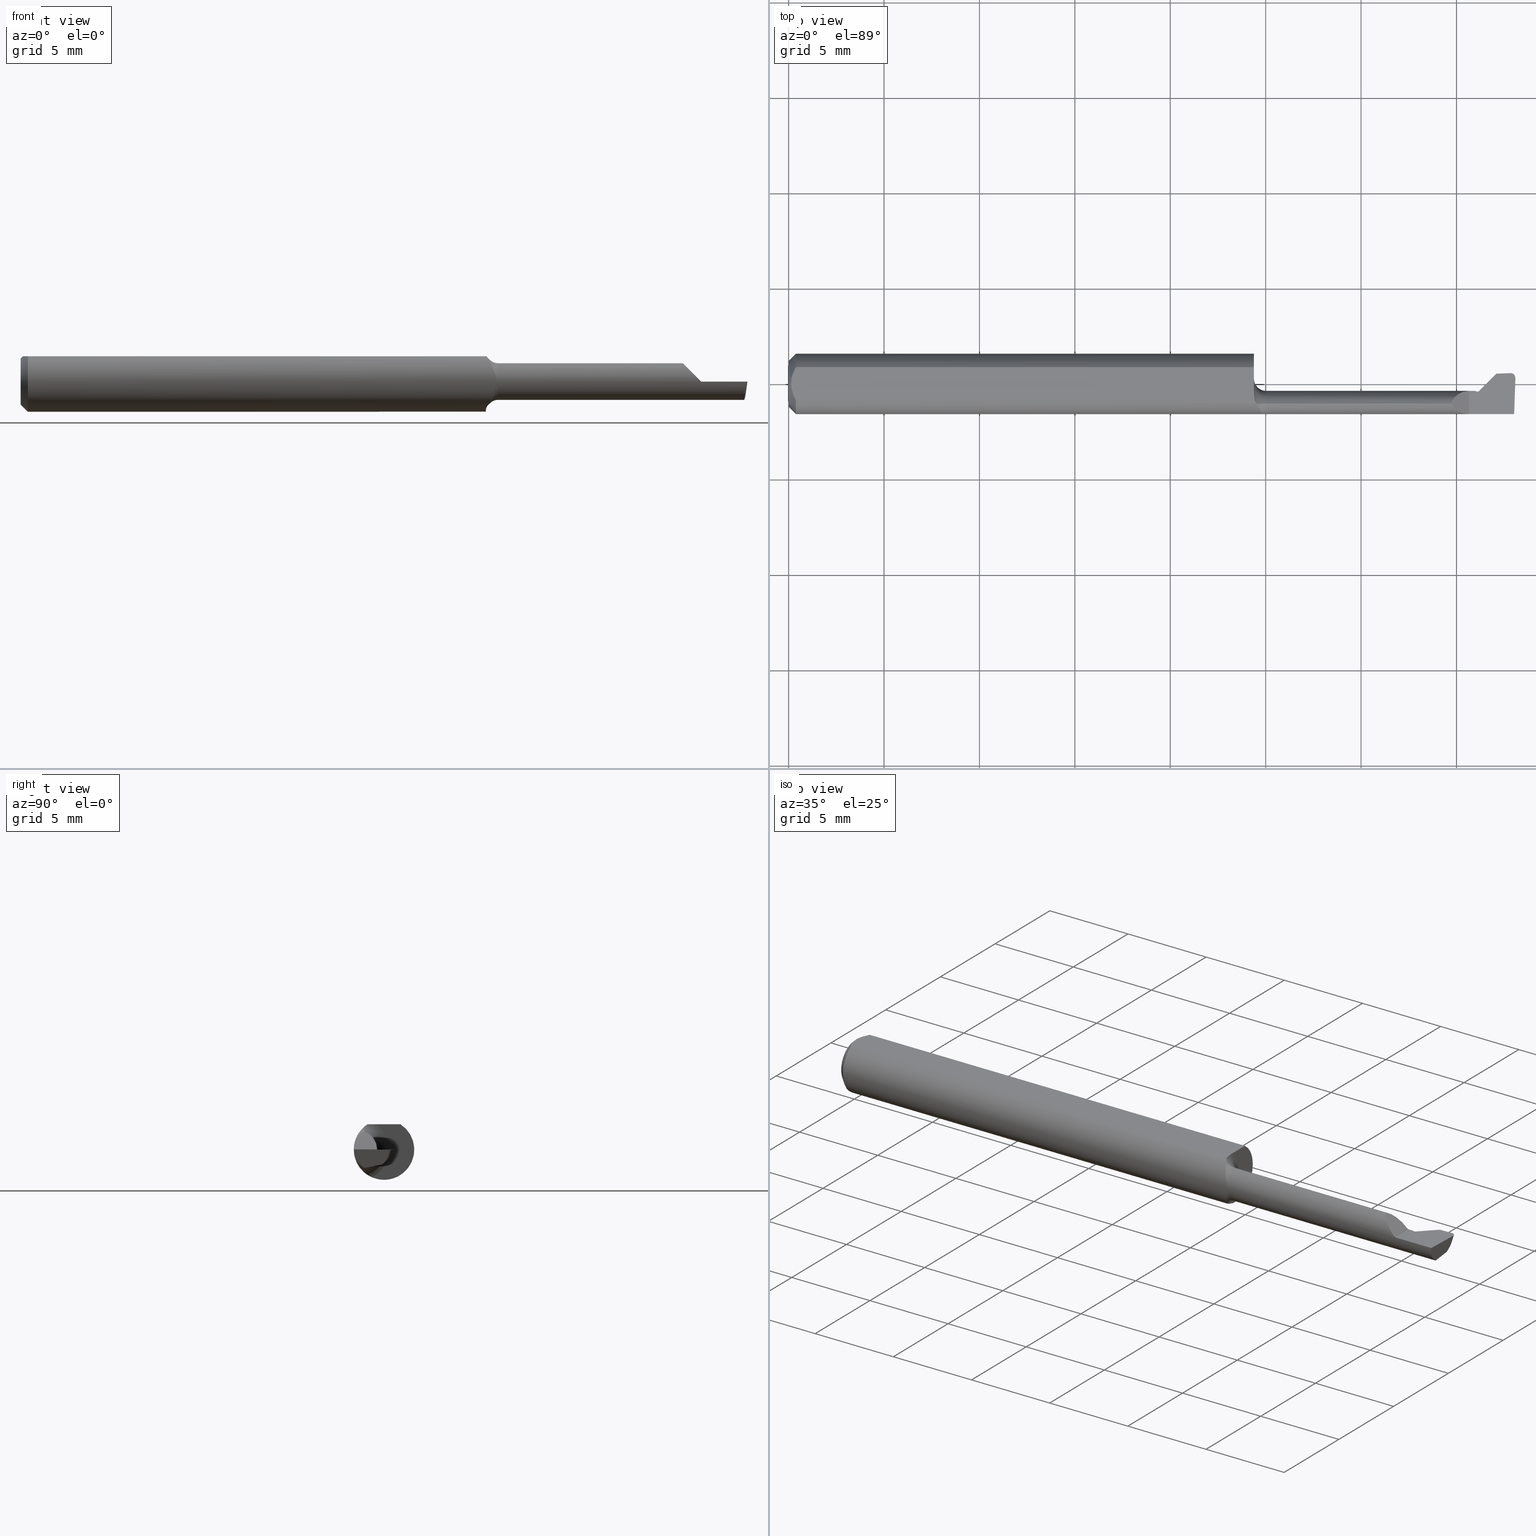
[diagram: canonical four-view strip — front | top / right | iso, engineering-drawing reading convention]
A machine part, canonical four-view strip (front | top / right | iso — engineering-drawing reading convention). The complete STEP part file that produces these views, byte-faithful:
ISO-10303-21;
HEADER;
FILE_DESCRIPTION (( 'STEP AP203' ),
    '1' );
FILE_NAME ('216807-BC090500.STEP',
    '2024-04-19T21:52:05',
    ( '' ),
    ( '' ),
    'SwSTEP 2.0',
    'SolidWorks 2022',
    '' );
FILE_SCHEMA (( 'CONFIG_CONTROL_DESIGN' ));
ENDSEC;

DATA;
#1 = ORIENTED_EDGE ( 'NONE', *, *, #312, .T. ) ;
#2 = DATE_AND_TIME ( #397, #802 ) ;
#3 = DIRECTION ( 'NONE',  ( 0.000000000000000000, 1.000000000000000000, 0.000000000000000000 ) ) ;
#4 = DIRECTION ( 'NONE',  ( 1.000000000000000000, 1.244524452569355806E-16, -0.000000000000000000 ) ) ;
#5 = EDGE_LOOP ( 'NONE', ( #527, #401, #346 ) ) ;
#6 = PERSON_AND_ORGANIZATION_ROLE ( 'design_supplier' ) ;
#7 = CARTESIAN_POINT ( 'NONE',  ( 1.488662628680349931, 0.01933750278960926633, -0.008003048899476171082 ) ) ;
#8 = CARTESIAN_POINT ( 'NONE',  ( 1.419915230768872272, -0.01699089539773420560, -0.01439561947543335080 ) ) ;
#9 = VERTEX_POINT ( 'NONE', #453 ) ;
#10 = LOCAL_TIME ( 14, 52, 5.000000000000000000, #517 ) ;
#11 = EDGE_CURVE ( 'NONE', #315, #27, #25, .T. ) ;
#12 = CARTESIAN_POINT ( 'NONE',  ( 1.524396830779669587, -0.04101666666666663880, -0.03771236166328252593 ) ) ;
#13 = DIRECTION ( 'NONE',  ( 0.000000000000000000, 1.000000000000000000, 0.000000000000000000 ) ) ;
#14 = VERTEX_POINT ( 'NONE', #300 ) ;
#15 = PLANE ( 'NONE',  #651 ) ;
#16 = CARTESIAN_POINT ( 'NONE',  ( 0.01500000000000134212, 0.000000000000000000, 0.000000000000000000 ) ) ;
#17 = VERTEX_POINT ( 'NONE', #121 ) ;
#18 = EDGE_CURVE ( 'NONE', #219, #379, #146, .T. ) ;
#19 = CARTESIAN_POINT ( 'NONE',  ( 1.404000000000000137, 0.07629532499999999717, -1.868634782302818344E-17 ) ) ;
#20 = CARTESIAN_POINT ( 'NONE',  ( 0.01215148319993578432, 0.02862325741844273796, 0.05235000000000001458 ) ) ;
#21 = ORIENTED_EDGE ( 'NONE', *, *, #54, .F. ) ;
#22 = EDGE_CURVE ( 'NONE', #228, #583, #719, .T. ) ;
#23 = DIRECTION ( 'NONE',  ( -1.244524452569355806E-16, 1.000000000000000000, 0.000000000000000000 ) ) ;
#24 = CARTESIAN_POINT ( 'NONE',  ( 1.404000000000000137, -0.05435000000000000248, 0.000000000000000000 ) ) ;
#25 = CIRCLE ( 'NONE', #758, 0.06500000000000000222 ) ;
#26 = VECTOR ( 'NONE', #220, 39.37007874015748143 ) ;
#27 = VERTEX_POINT ( 'NONE', #448 ) ;
#28 = CARTESIAN_POINT ( 'NONE',  ( 1.489860275369516485, 0.02229009242530491722, -3.414809992080329023E-17 ) ) ;
#29 =( BOUNDED_CURVE ( )  B_SPLINE_CURVE ( 3, ( #585, #461, #391, #399 ),
 .UNSPECIFIED., .F., .T. ) 
 B_SPLINE_CURVE_WITH_KNOTS ( ( 4, 4 ),
 ( 3.682777070145067277, 4.704434351040720941 ),
 .UNSPECIFIED. ) 
 CURVE ( )  GEOMETRIC_REPRESENTATION_ITEM ( )  RATIONAL_B_SPLINE_CURVE ( ( 1.000000000000000000, 0.9148931230978425422, 0.9148931230978425422, 1.000000000000000000 ) ) 
 REPRESENTATION_ITEM ( '' )  );
#30 = DIRECTION ( 'NONE',  ( -0.1830127018922091953, 0.1830127018922113324, 0.9659258262890718649 ) ) ;
#31 = ORIENTED_EDGE ( 'NONE', *, *, #81, .T. ) ;
#32 = DIRECTION ( 'NONE',  ( 1.000000000000000000, 0.000000000000000000, 0.000000000000000000 ) ) ;
#33 = CARTESIAN_POINT ( 'NONE',  ( 1.489637975266641767, 0.02228815012281870622, -3.414809992080329023E-17 ) ) ;
#34 = B_SPLINE_CURVE_WITH_KNOTS ( 'NONE', 3,
 ( #59, #839, #848, #240, #773, #653 ),
 .UNSPECIFIED., .F., .F.,
 ( 4, 2, 4 ),
 ( 0.0008363620907653757921, 0.001180085110177162737, 0.001523808129588949791 ),
 .UNSPECIFIED. ) ;
#35 = ORIENTED_EDGE ( 'NONE', *, *, #816, .T. ) ;
#36 = CARTESIAN_POINT ( 'NONE',  ( 0.9780728829995560814, -0.06062511249535040142, 0.01695961461494563394 ) ) ;
#37 = CARTESIAN_POINT ( 'NONE',  ( 1.434806251545894806, -0.01659973985282175296, -0.03340699868001765355 ) ) ;
#38 = ORIENTED_EDGE ( 'NONE', *, *, #54, .T. ) ;
#39 = AXIS2_PLACEMENT_3D ( 'NONE', #627, #554, #743 ) ;
#40 = CARTESIAN_POINT ( 'NONE',  ( 1.457007889689934999, -0.05187365916450915881, -0.1905061904767888503 ) ) ;
#41 = CARTESIAN_POINT ( 'NONE',  ( 1.429497771842300313, -0.02057511760478436535, -0.02988899804153652764 ) ) ;
#42 = DIRECTION ( 'NONE',  ( 0.6766600385554197850, 0.7251096031122551411, 0.1278563869994980839 ) ) ;
#43 = ORIENTED_EDGE ( 'NONE', *, *, #376, .T. ) ;
#44 = EDGE_CURVE ( 'NONE', #215, #741, #304, .T. ) ;
#45 = CARTESIAN_POINT ( 'NONE',  ( 1.424396830779669498, -0.01434999999999999991, -3.414809992080329023E-17 ) ) ;
#46 = ORIENTED_EDGE ( 'NONE', *, *, #516, .T. ) ;
#47 = EDGE_CURVE ( 'NONE', #420, #141, #620, .T. ) ;
#48 = VERTEX_POINT ( 'NONE', #232 ) ;
#49 = CARTESIAN_POINT ( 'NONE',  ( 0.01500000000000134212, 0.000000000000000000, 0.000000000000000000 ) ) ;
#50 = ORIENTED_EDGE ( 'NONE', *, *, #752, .T. ) ;
#51 = TOROIDAL_SURFACE ( 'NONE', #536, 0.06500000000000000222, 0.02500000000000000139 ) ;
#52 = AXIS2_PLACEMENT_3D ( 'NONE', #665, #196, #670 ) ;
#53 = CARTESIAN_POINT ( 'NONE',  ( 1.425521129627495442, -0.02010269604332818455, -0.02282168832184642074 ) ) ;
#54 = EDGE_CURVE ( 'NONE', #415, #502, #116, .T. ) ;
#55 = CARTESIAN_POINT ( 'NONE',  ( 1.493512013321905085, -0.05456631794137141445, -0.02956846890908434305 ) ) ;
#56 = ORIENTED_EDGE ( 'NONE', *, *, #533, .F. ) ;
#57 = PERSON_AND_ORGANIZATION_ROLE ( 'creator' ) ;
#58 = DIRECTION ( 'NONE',  ( 0.6830127018922208526, -0.6830127018922226290, 0.2588190451025079719 ) ) ;
#59 = CARTESIAN_POINT ( 'NONE',  ( 1.434806251545894806, -0.01659973985282175296, -0.03340699868001765355 ) ) ;
#60 = ORIENTED_EDGE ( 'NONE', *, *, #749, .F. ) ;
#61 = DIRECTION ( 'NONE',  ( 0.1263519090027880321, 0.3433542545449546624, 0.9306680670234849240 ) ) ;
#62 = DIRECTION ( 'NONE',  ( 1.000000000000000000, 0.000000000000000000, 0.000000000000000000 ) ) ;
#63 = VERTEX_POINT ( 'NONE', #166 ) ;
#64 = CARTESIAN_POINT ( 'NONE',  ( 0.000000000000000000, 0.000000000000000000, 0.000000000000000000 ) ) ;
#65 = CARTESIAN_POINT ( 'NONE',  ( 0.9668230926184977481, -0.04188734258381466430, -0.04618412098618038253 ) ) ;
#66 = EDGE_LOOP ( 'NONE', ( #750, #455, #138, #814, #597 ) ) ;
#67 = EDGE_CURVE ( 'NONE', #14, #572, #287, .T. ) ;
#68 = CARTESIAN_POINT ( 'NONE',  ( 1.422712439989037625, -0.01906001227003338225, -0.01884615724845115081 ) ) ;
#69 = ORIENTED_EDGE ( 'NONE', *, *, #792, .F. ) ;
#70 = ADVANCED_FACE ( 'NONE', ( #110 ), #308, .T. ) ;
#71 = PLANE ( 'NONE',  #227 ) ;
#72 = CARTESIAN_POINT ( 'NONE',  ( 0.9627151797249005050, -0.03695513534442331632, 0.05035240833426896101 ) ) ;
#73 = ORIENTED_EDGE ( 'NONE', *, *, #816, .F. ) ;
#74 = CARTESIAN_POINT ( 'NONE',  ( 1.404000000000000137, -0.01435153127931018679, 0.0003499999999998593212 ) ) ;
#75 = AXIS2_PLACEMENT_3D ( 'NONE', #628, #552, #162 ) ;
#76 = VECTOR ( 'NONE', #656, 39.37007874015748854 ) ;
#77 = CARTESIAN_POINT ( 'NONE',  ( 1.489860275369516485, 0.02229009242530491722, -3.414809992080329023E-17 ) ) ;
#78 = EDGE_CURVE ( 'NONE', #415, #515, #34, .T. ) ;
#79 = ORIENTED_EDGE ( 'NONE', *, *, #792, .T. ) ;
#80 = FACE_OUTER_BOUND ( 'NONE', #236, .T. ) ;
#81 = EDGE_CURVE ( 'NONE', #741, #14, #582, .T. ) ;
#82 = DIRECTION ( 'NONE',  ( 0.03279479952046964603, -0.9391201854309708663, 0.3420201433256689350 ) ) ;
#83 = ORIENTED_EDGE ( 'NONE', *, *, #632, .T. ) ;
#84 = CARTESIAN_POINT ( 'NONE',  ( 1.386600631440081832, -0.01450378158265291581, 0.01774936855991811335 ) ) ;
#85 = CARTESIAN_POINT ( 'NONE',  ( 1.418322500980937706, -0.01527816118568727476, -3.414809992080329023E-17 ) ) ;
#86 = ORIENTED_EDGE ( 'NONE', *, *, #749, .T. ) ;
#87 = CARTESIAN_POINT ( 'NONE',  ( 1.366637638336717808, -0.04101666666666663186, 0.03771236166328252593 ) ) ;
#88 = APPROVAL_PERSON_ORGANIZATION ( #720, #178, #183 ) ;
#89 = PRODUCT_RELATED_PRODUCT_CATEGORY ( 'detail', '', ( #441 ) ) ;
#90 = CARTESIAN_POINT ( 'NONE',  ( 1.489860275369516485, 0.02229009242530491722, -3.414809992080329023E-17 ) ) ;
#91 = AXIS2_PLACEMENT_3D ( 'NONE', #248, #245, #514 ) ;
#92 = CIRCLE ( 'NONE', #199, 0.06235000000000000264 ) ;
#93 = ORIENTED_EDGE ( 'NONE', *, *, #321, .F. ) ;
#94 = LINE ( 'NONE', #679, #859 ) ;
#95 = FACE_OUTER_BOUND ( 'NONE', #629, .T. ) ;
#96 = EDGE_LOOP ( 'NONE', ( #537, #698, #177 ) ) ;
#97 = APPLICATION_PROTOCOL_DEFINITION ( 'international standard', 'config_control_design', 1994, #742 ) ;
#98 = DIRECTION ( 'NONE',  ( -0.1263519090027880598, -0.3433542545449546068, -0.9306680670234847019 ) ) ;
#99 = ORIENTED_EDGE ( 'NONE', *, *, #312, .F. ) ;
#100 = CARTESIAN_POINT ( 'NONE',  ( 1.459999999999999964, 0.02125316922033035003, -1.868634782302818344E-17 ) ) ;
#101 = VECTOR ( 'NONE', #612, 39.37007874015748143 ) ;
#102 = DIRECTION ( 'NONE',  ( 1.000000000000000000, -0.000000000000000000, -0.000000000000000000 ) ) ;
#103 = VECTOR ( 'NONE', #617, 39.37007874015748143 ) ;
#104 = ADVANCED_FACE ( 'NONE', ( #579 ), #846, .F. ) ;
#105 = ORIENTED_EDGE ( 'NONE', *, *, #838, .T. ) ;
#106 = AXIS2_PLACEMENT_3D ( 'NONE', #12, #322, #139 ) ;
#107 = CARTESIAN_POINT ( 'NONE',  ( 1.404000000000000137, -0.06234999999999997489, -1.868634782302818344E-17 ) ) ;
#108 = DIRECTION ( 'NONE',  ( 0.7071067811865460184, 0.000000000000000000, -0.7071067811865489050 ) ) ;
#109 = ADVANCED_FACE ( 'NONE', ( #783 ), #140, .F. ) ;
#110 = FACE_OUTER_BOUND ( 'NONE', #688, .T. ) ;
#111 = DIRECTION ( 'NONE',  ( 0.000000000000000000, 0.000000000000000000, -1.000000000000000000 ) ) ;
#112 = CARTESIAN_POINT ( 'NONE',  ( 0.01500000000000134386, -0.03386738844375219992, 0.05235000000000000764 ) ) ;
#113 = DIRECTION ( 'NONE',  ( 1.000000000000000000, -0.000000000000000000, -0.000000000000000000 ) ) ;
#114 = EDGE_LOOP ( 'NONE', ( #69, #768, #545, #93 ) ) ;
#115 = MECHANICAL_CONTEXT ( 'NONE', #742, 'mechanical' ) ;
#116 = LINE ( 'NONE', #706, #549 ) ;
#117 = VERTEX_POINT ( 'NONE', #331 ) ;
#118 = UNCERTAINTY_MEASURE_WITH_UNIT (LENGTH_MEASURE( 1.000000000000000082E-05 ), #167, 'distance_accuracy_value', 'NONE');
#119 = AXIS2_PLACEMENT_3D ( 'NONE', #360, #504, #771 ) ;
#120 = SHAPE_DEFINITION_REPRESENTATION ( #207, #297 ) ;
#121 = CARTESIAN_POINT ( 'NONE',  ( 1.424396830779669498, -0.01434999999999999991, -3.414809992080329023E-17 ) ) ;
#122 = ORIENTED_EDGE ( 'NONE', *, *, #291, .T. ) ;
#123 = DATE_AND_TIME ( #796, #648 ) ;
#124 = CARTESIAN_POINT ( 'NONE',  ( 1.501625826761487925, 0.07286055374312545851, -1.868634782302818344E-17 ) ) ;
#125 = CARTESIAN_POINT ( 'NONE',  ( 1.421099400577166216, -0.01801694594202882943, -0.01675241242363837216 ) ) ;
#126 = ORIENTED_EDGE ( 'NONE', *, *, #254, .F. ) ;
#127 = DATE_TIME_ROLE ( 'classification_date' ) ;
#128 = FACE_OUTER_BOUND ( 'NONE', #476, .T. ) ;
#129 = DIRECTION ( 'NONE',  ( -0.000000000000000000, 0.000000000000000000, -1.000000000000000000 ) ) ;
#130 = ORIENTED_EDGE ( 'NONE', *, *, #229, .F. ) ;
#131 = EDGE_CURVE ( 'NONE', #466, #420, #596, .T. ) ;
#132 = AXIS2_PLACEMENT_3D ( 'NONE', #798, #189, #540 ) ;
#133 = COORDINATED_UNIVERSAL_TIME_OFFSET ( 8, 0, .BEHIND. ) ;
#134 = VECTOR ( 'NONE', #306, 39.37007874015748143 ) ;
#135 = CARTESIAN_POINT ( 'NONE',  ( 1.496063729740016779, 0.002461309642244289067, -0.02512725622798179376 ) ) ;
#136 = CARTESIAN_POINT ( 'NONE',  ( 1.423438204101229454, -0.01942537668648443641, -0.01950097493947458918 ) ) ;
#137 = EDGE_CURVE ( 'NONE', #27, #431, #318, .T. ) ;
#138 = ORIENTED_EDGE ( 'NONE', *, *, #558, .T. ) ;
#139 = DIRECTION ( 'NONE',  ( 0.000000000000000000, 0.9848077530122077983, 0.1736481776669313581 ) ) ;
#140 = PLANE ( 'NONE',  #857 ) ;
#141 = VERTEX_POINT ( 'NONE', #462 ) ;
#142 = LINE ( 'NONE', #676, #103 ) ;
#143 = ADVANCED_FACE ( 'NONE', ( #404 ), #319, .T. ) ;
#144 = FACE_OUTER_BOUND ( 'NONE', #531, .T. ) ;
#145 = VERTEX_POINT ( 'NONE', #853 ) ;
#146 = B_SPLINE_CURVE_WITH_KNOTS ( 'NONE', 3,
 ( #711, #314, #570, #714 ),
 .UNSPECIFIED., .F., .F.,
 ( 4, 4 ),
 ( 0.001170160043506681281, 0.001212204300993142882 ),
 .UNSPECIFIED. ) ;
#147 = CARTESIAN_POINT ( 'NONE',  ( 1.459949147085749965, 0.02246354225336191779, 0.003328322850461375246 ) ) ;
#148 = VECTOR ( 'NONE', #367, 39.37007874015748854 ) ;
#149 = CARTESIAN_POINT ( 'NONE',  ( 1.424396830779669498, -0.01948994711072783367, -0.01961572615421481106 ) ) ;
#150 = ORIENTED_EDGE ( 'NONE', *, *, #373, .F. ) ;
#151 = DIRECTION ( 'NONE',  ( 0.000000000000000000, 0.000000000000000000, -1.000000000000000000 ) ) ;
#152 = ORIENTED_EDGE ( 'NONE', *, *, #137, .F. ) ;
#153 = CARTESIAN_POINT ( 'NONE',  ( 1.372437649892632727, -0.02461175665807491600, 0.03191235010736733629 ) ) ;
#154 = B_SPLINE_CURVE_WITH_KNOTS ( 'NONE', 3,
 ( #728, #526, #72, #794 ),
 .UNSPECIFIED., .F., .F.,
 ( 4, 4 ),
 ( 0.0005326994379201768770, 0.0008220502116935388430 ),
 .UNSPECIFIED. ) ;
#155 = CARTESIAN_POINT ( 'NONE',  ( 0.9850000000000000977, -0.04101666666666662492, 0.03771236166328252593 ) ) ;
#156 = ORIENTED_EDGE ( 'NONE', *, *, #229, .T. ) ;
#157 = CARTESIAN_POINT ( 'NONE',  ( 1.404000000000000137, -0.06234860793252439831, 0.0003499999999998593212 ) ) ;
#158 =( GEOMETRIC_REPRESENTATION_CONTEXT ( 3 ) GLOBAL_UNCERTAINTY_ASSIGNED_CONTEXT ( ( #118 ) ) GLOBAL_UNIT_ASSIGNED_CONTEXT ( ( #167, #434, #302 ) ) REPRESENTATION_CONTEXT ( 'NONE', 'WORKASPACE' ) );
#159 = VERTEX_POINT ( 'NONE', #591 ) ;
#160 = ADVANCED_FACE ( 'NONE', ( #270 ), #723, .T. ) ;
#161 = APPLICATION_PROTOCOL_DEFINITION ( 'international standard', 'config_control_design', 1994, #789 ) ;
#162 = DIRECTION ( 'NONE',  ( 0.000000000000000000, 0.9381871857768088185, -0.3461283063319028352 ) ) ;
#163 = ORIENTED_EDGE ( 'NONE', *, *, #358, .F. ) ;
#164 = DIRECTION ( 'NONE',  ( 1.000000000000000000, 0.000000000000000000, 0.000000000000000000 ) ) ;
#165 = CARTESIAN_POINT ( 'NONE',  ( 0.9600000000000001865, -0.01435000000000000338, -1.868634782302818344E-17 ) ) ;
#166 = CARTESIAN_POINT ( 'NONE',  ( 0.9668230926185069629, -0.04188734258383922798, 0.04618412098615692907 ) ) ;
#167 =( CONVERSION_BASED_UNIT ( 'INCH', #695 ) LENGTH_UNIT ( ) NAMED_UNIT ( #691 ) );
#168 = EDGE_CURVE ( 'NONE', #63, #466, #154, .T. ) ;
#169 = CARTESIAN_POINT ( 'NONE',  ( 0.9615945859696534148, -0.03386738844375219298, 0.05235000000000000764 ) ) ;
#170 = CARTESIAN_POINT ( 'NONE',  ( 1.494927643025548925, -0.06234999999999996795, -0.01580873299344354513 ) ) ;
#171 = ORIENTED_EDGE ( 'NONE', *, *, #18, .F. ) ;
#172 =( BOUNDED_CURVE ( )  B_SPLINE_CURVE ( 3, ( #551, #815, #216, #28 ),
 .UNSPECIFIED., .F., .T. ) 
 B_SPLINE_CURVE_WITH_KNOTS ( ( 4, 4 ),
 ( 1.910170056356173651, 3.471551771640491779 ),
 .UNSPECIFIED. ) 
 CURVE ( )  GEOMETRIC_REPRESENTATION_ITEM ( )  RATIONAL_B_SPLINE_CURVE ( ( 1.000000000000000000, 0.8069516682904512850, 0.8069516682904512850, 1.000000000000000000 ) ) 
 REPRESENTATION_ITEM ( '' )  );
#173 = SECURITY_CLASSIFICATION ( '', '', #249 ) ;
#174 = LINE ( 'NONE', #643, #437 ) ;
#175 = DIRECTION ( 'NONE',  ( 1.000000000000000000, 0.000000000000000000, 0.000000000000000000 ) ) ;
#176 = CARTESIAN_POINT ( 'NONE',  ( 1.494647997105398751, -0.01182230472744790796, -0.03256460796882995612 ) ) ;
#177 = ORIENTED_EDGE ( 'NONE', *, *, #533, .T. ) ;
#178 = APPROVAL ( #734, 'UNSPECIFIED' ) ;
#179 = CARTESIAN_POINT ( 'NONE',  ( -0.001076764090975429250, -0.03268229239019886101, -0.008000000000000000167 ) ) ;
#180 = CARTESIAN_POINT ( 'NONE',  ( 0.9780214167226016775, -0.04101666666666663880, -0.03771236166328251899 ) ) ;
#181 = CARTESIAN_POINT ( 'NONE',  ( 0.01500000000000134212, 7.635672792683746671E-18, 0.06235000000000000264 ) ) ;
#182 = EDGE_LOOP ( 'NONE', ( #46, #473, #185, #608 ) ) ;
#183 = APPROVAL_ROLE ( '' ) ;
#184 = CARTESIAN_POINT ( 'NONE',  ( 1.424922215390185931, -0.01978798486475995613, -0.02116066888408097216 ) ) ;
#185 = ORIENTED_EDGE ( 'NONE', *, *, #838, .F. ) ;
#186 = AXIS2_PLACEMENT_3D ( 'NONE', #747, #821, #151 ) ;
#187 = APPROVAL_DATE_TIME ( #123, #178 ) ;
#188 = DIRECTION ( 'NONE',  ( 0.9993908270190959842, 0.03489949670249409969, 0.000000000000000000 ) ) ;
#189 = DIRECTION ( 'NONE',  ( -0.1263519090027880876, -0.3433542545449546624, -0.9306680670234849240 ) ) ;
#190 = ORIENTED_EDGE ( 'NONE', *, *, #774, .T. ) ;
#191 = PERSON_AND_ORGANIZATION ( #625, #378 ) ;
#192 = DIRECTION ( 'NONE',  ( 0.03516126301290131706, 0.9993816516143056994, 0.000000000000000000 ) ) ;
#193 = ADVANCED_FACE ( 'NONE', ( #144 ), #530, .F. ) ;
#194 = DIRECTION ( 'NONE',  ( -0.9919415193434433231, 0.03489949670249928304, 0.1217951038939310282 ) ) ;
#195 = ORIENTED_EDGE ( 'NONE', *, *, #386, .F. ) ;
#196 = DIRECTION ( 'NONE',  ( -1.000000000000000000, -0.000000000000000000, -0.000000000000000000 ) ) ;
#197 = ORIENTED_EDGE ( 'NONE', *, *, #478, .F. ) ;
#198 = DATE_AND_TIME ( #584, #310 ) ;
#199 = AXIS2_PLACEMENT_3D ( 'NONE', #763, #432, #837 ) ;
#200 = CARTESIAN_POINT ( 'NONE',  ( -0.7049915027849358307, -0.05435000000000000248, -1.868634782302818344E-17 ) ) ;
#201 = CARTESIAN_POINT ( 'NONE',  ( 0.9644495984685876877, -0.03967502319616320744, -0.04819061538548213841 ) ) ;
#202 = ORIENTED_EDGE ( 'NONE', *, *, #622, .T. ) ;
#203 = EDGE_CURVE ( 'NONE', #572, #840, #667, .T. ) ;
#204 = PLANE ( 'NONE',  #818 ) ;
#205 = CARTESIAN_POINT ( 'NONE',  ( 0.9627394238178514918, -0.03698980613378194393, -0.05032389122870733339 ) ) ;
#206 = EDGE_LOOP ( 'NONE', ( #712, #35, #223, #266 ) ) ;
#207 = PRODUCT_DEFINITION_SHAPE ( 'NONE', 'NONE',  #564 ) ;
#208 = DIRECTION ( 'NONE',  ( -0.000000000000000000, 0.000000000000000000, -1.000000000000000000 ) ) ;
#209 = ORIENTED_EDGE ( 'NONE', *, *, #854, .F. ) ;
#210 = AXIS2_PLACEMENT_3D ( 'NONE', #222, #30, #828 ) ;
#211 = CARTESIAN_POINT ( 'NONE',  ( 1.499475125171861878, 0.01173158616361657906, -1.868634782302818344E-17 ) ) ;
#212 = AXIS2_PLACEMENT_3D ( 'NONE', #557, #32, #739 ) ;
#213 = DIRECTION ( 'NONE',  ( 0.000000000000000000, -0.3422042129537792854, -0.9396256045024978798 ) ) ;
#214 = B_SPLINE_CURVE_WITH_KNOTS ( 'NONE', 3,
 ( #403, #858, #464, #317, #383, #337 ),
 .UNSPECIFIED., .F., .F.,
 ( 4, 2, 4 ),
 ( 0.003138065481210369073, 0.003587221268395912946, 0.004036377055581456819 ),
 .UNSPECIFIED. ) ;
#215 = VERTEX_POINT ( 'NONE', #671 ) ;
#216 = CARTESIAN_POINT ( 'NONE',  ( 1.495721480118110014, 0.02229009242530486865, -3.414809992080328407E-17 ) ) ;
#217 = LINE ( 'NONE', #281, #589 ) ;
#218 = ADVANCED_FACE ( 'NONE', ( #790 ), #535, .T. ) ;
#219 = VERTEX_POINT ( 'NONE', #677 ) ;
#220 = DIRECTION ( 'NONE',  ( -0.000000000000000000, 1.000000000000000000, -0.000000000000000000 ) ) ;
#221 = ADVANCED_FACE ( 'NONE', ( #732 ), #51, .F. ) ;
#222 = CARTESIAN_POINT ( 'NONE',  ( 1.457007889689934999, -0.04696105891026573775, -0.1914369744162757181 ) ) ;
#223 = ORIENTED_EDGE ( 'NONE', *, *, #632, .F. ) ;
#224 = PERSON_AND_ORGANIZATION_ROLE ( 'design_owner' ) ;
#225 = CARTESIAN_POINT ( 'NONE',  ( 0.9600000000000001865, -0.01582108228875356293, 0.05235000000000000764 ) ) ;
#226 = CIRCLE ( 'NONE', #856, 0.04000000000000000083 ) ;
#227 = AXIS2_PLACEMENT_3D ( 'NONE', #793, #58, #601 ) ;
#228 = VERTEX_POINT ( 'NONE', #260 ) ;
#229 = EDGE_CURVE ( 'NONE', #359, #228, #239, .T. ) ;
#230 = DIRECTION ( 'NONE',  ( 0.4105645555054137641, 0.6520830831288186857, 0.6373573553822501347 ) ) ;
#231 = DIRECTION ( 'NONE',  ( -1.000000000000000000, -1.244524452569355806E-16, 0.000000000000000000 ) ) ;
#232 = CARTESIAN_POINT ( 'NONE',  ( 1.404000000000000137, -0.01435000000000000338, -1.868634782302818344E-17 ) ) ;
#233 = EDGE_CURVE ( 'NONE', #379, #460, #633, .T. ) ;
#234 = DIRECTION ( 'NONE',  ( 1.000000000000000000, 1.244524452569355806E-16, -0.000000000000000000 ) ) ;
#235 = CARTESIAN_POINT ( 'NONE',  ( 1.463469538887571808, -0.04852474939205214666, -0.1919291479741563056 ) ) ;
#236 = EDGE_LOOP ( 'NONE', ( #423, #202, #60 ) ) ;
#237 = ORIENTED_EDGE ( 'NONE', *, *, #607, .F. ) ;
#238 = CARTESIAN_POINT ( 'NONE',  ( 1.430140572357628148, -0.02009374157795864452, -0.03031499055703920295 ) ) ;
#239 = CIRCLE ( 'NONE', #365, 0.04734999999999860154 ) ;
#240 = CARTESIAN_POINT ( 'NONE',  ( 1.426579216182219945, -0.03236048191541274210, -0.03618604274163925855 ) ) ;
#241 = VECTOR ( 'NONE', #442, 39.37007874015748854 ) ;
#242 = CC_DESIGN_PERSON_AND_ORGANIZATION_ASSIGNMENT ( #191, #6, ( #494 ) ) ;
#243 = CARTESIAN_POINT ( 'NONE',  ( 0.9679240393098628159, -0.04518090574038784168, 0.04319697723817567808 ) ) ;
#244 = CARTESIAN_POINT ( 'NONE',  ( 1.430140572357628148, -0.02009374157795864452, -0.03031499055703920295 ) ) ;
#245 = DIRECTION ( 'NONE',  ( -1.000000000000000000, 0.000000000000000000, -0.000000000000000000 ) ) ;
#246 = APPROVAL_STATUS ( 'not_yet_approved' ) ;
#247 = LINE ( 'NONE', #577, #493 ) ;
#248 = CARTESIAN_POINT ( 'NONE',  ( 1.404000000000000137, 0.07629532499999999717, -1.868634782302818344E-17 ) ) ;
#249 = SECURITY_CLASSIFICATION_LEVEL ( 'unclassified' ) ;
#250 = CARTESIAN_POINT ( 'NONE',  ( 0.9780351042903686620, -0.04101666666666661104, 0.03771236166328251205 ) ) ;
#251 = CARTESIAN_POINT ( 'NONE',  ( 0.9605027863892505735, -0.03089035930692959203, -0.05428190755769668474 ) ) ;
#252 = ORIENTED_EDGE ( 'NONE', *, *, #384, .T. ) ;
#253 = AXIS2_PLACEMENT_3D ( 'NONE', #49, #102, #574 ) ;
#254 = EDGE_CURVE ( 'NONE', #761, #583, #791, .T. ) ;
#255 = FACE_OUTER_BOUND ( 'NONE', #445, .T. ) ;
#256 = DIRECTION ( 'NONE',  ( -1.000000000000000000, -0.000000000000000000, -0.000000000000000000 ) ) ;
#257 = VERTEX_POINT ( 'NONE', #345 ) ;
#258 = COORDINATED_UNIVERSAL_TIME_OFFSET ( 8, 0, .BEHIND. ) ;
#259 = CARTESIAN_POINT ( 'NONE',  ( 0.005000000000001387016, 6.414153026140964483E-18, 0.05235000000000000764 ) ) ;
#260 = CARTESIAN_POINT ( 'NONE',  ( 0.000000000000000000, 6.717187693323146747E-18, 0.04734999999999860154 ) ) ;
#261 = EDGE_LOOP ( 'NONE', ( #150, #613, #99, #86 ) ) ;
#262 = APPROVAL_DATE_TIME ( #2, #800 ) ;
#263 = PLANE ( 'NONE',  #106 ) ;
#264 =( BOUNDED_CURVE ( )  B_SPLINE_CURVE ( 3, ( #45, #303, #507, #443 ),
 .UNSPECIFIED., .F., .T. ) 
 B_SPLINE_CURVE_WITH_KNOTS ( ( 4, 4 ),
 ( 3.141592653589805550, 3.909660172168366810 ),
 .UNSPECIFIED. ) 
 CURVE ( )  GEOMETRIC_REPRESENTATION_ITEM ( )  RATIONAL_B_SPLINE_CURVE ( ( 1.000000000000000000, 0.9514405870031131807, 0.9514405870031131807, 1.000000000000000000 ) ) 
 REPRESENTATION_ITEM ( '' )  );
#265 = CARTESIAN_POINT ( 'NONE',  ( 1.419366229479324337, -0.01638025399512944846, -0.01271276119788355627 ) ) ;
#266 = ORIENTED_EDGE ( 'NONE', *, *, #468, .F. ) ;
#267 = CC_DESIGN_DATE_AND_TIME_ASSIGNMENT ( #198, #851, ( #564 ) ) ;
#268 = FACE_OUTER_BOUND ( 'NONE', #639, .T. ) ;
#269 = APPROVAL_PERSON_ORGANIZATION ( #655, #812, #785 ) ;
#270 = FACE_OUTER_BOUND ( 'NONE', #754, .T. ) ;
#271 = ORIENTED_EDGE ( 'NONE', *, *, #321, .T. ) ;
#272 = DIRECTION ( 'NONE',  ( -0.7071067811865456854, 0.000000000000000000, 0.7071067811865493491 ) ) ;
#273 = CARTESIAN_POINT ( 'NONE',  ( 1.488772915756147563, 0.01933525341719460541, -0.008009145865072044013 ) ) ;
#274 = ORIENTED_EDGE ( 'NONE', *, *, #779, .F. ) ;
#275 = DIRECTION ( 'NONE',  ( -0.1830127018922091675, 0.1830127018922113047, 0.9659258262890716429 ) ) ;
#276 = CARTESIAN_POINT ( 'NONE',  ( 0.006070804952378321996, 0.01191432965610325807, 0.05235000000000000764 ) ) ;
#277 = ORIENTED_EDGE ( 'NONE', *, *, #11, .F. ) ;
#278 = CARTESIAN_POINT ( 'NONE',  ( 0.9599999999999990763, -0.02188348396873492779, 0.05235000000000000764 ) ) ;
#279 = AXIS2_PLACEMENT_3D ( 'NONE', #374, #175, #644 ) ;
#280 = ADVANCED_FACE ( 'NONE', ( #744 ), #430, .F. ) ;
#281 = CARTESIAN_POINT ( 'NONE',  ( 1.384396830779669463, -0.05435000000000000248, -1.868634782302818344E-17 ) ) ;
#282 = ORIENTED_EDGE ( 'NONE', *, *, #668, .F. ) ;
#283 = ADVANCED_FACE ( 'NONE', ( #95 ), #606, .T. ) ;
#284 = DIRECTION ( 'NONE',  ( 0.02467767077832642639, -0.7066760308408334135, 0.7071067811865489050 ) ) ;
#285 = CARTESIAN_POINT ( 'NONE',  ( 1.404000000000000137, -0.01835000000000001907, 0.000000000000000000 ) ) ;
#286 = ORIENTED_EDGE ( 'NONE', *, *, #22, .T. ) ;
#287 =( BOUNDED_CURVE ( )  B_SPLINE_CURVE ( 3, ( #433, #55, #170, #702 ),
 .UNSPECIFIED., .F., .F. ) 
 B_SPLINE_CURVE_WITH_KNOTS ( ( 4, 4 ),
 ( 3.403711695609235033, 4.433323605848857873 ),
 .UNSPECIFIED. ) 
 CURVE ( )  GEOMETRIC_REPRESENTATION_ITEM ( )  RATIONAL_B_SPLINE_CURVE ( ( 1.000000000000000000, 0.9135921865189926550, 0.9135921865189926550, 1.000000000000000000 ) ) 
 REPRESENTATION_ITEM ( '' )  );
#288 = FACE_OUTER_BOUND ( 'NONE', #694, .T. ) ;
#289 = CARTESIAN_POINT ( 'NONE',  ( 1.424396830779669498, -0.05435000000000000248, 0.000000000000000000 ) ) ;
#290 = ORIENTED_EDGE ( 'NONE', *, *, #203, .F. ) ;
#291 = EDGE_CURVE ( 'NONE', #415, #510, #559, .T. ) ;
#292 = CARTESIAN_POINT ( 'NONE',  ( 1.200156928287708258, -0.3945484777792228059, -0.4115681975722674801 ) ) ;
#293 = DIRECTION ( 'NONE',  ( -1.244524452569355806E-16, 1.000000000000000000, 0.000000000000000000 ) ) ;
#294 = EDGE_CURVE ( 'NONE', #17, #444, #217, .T. ) ;
#295 = AXIS2_PLACEMENT_3D ( 'NONE', #525, #660, #3 ) ;
#296 = ORIENTED_EDGE ( 'NONE', *, *, #774, .F. ) ;
#297 = ADVANCED_BREP_SHAPE_REPRESENTATION ( '216807-BC090500', ( #762, #119 ), #158 ) ;
#298 = CARTESIAN_POINT ( 'NONE',  ( 0.9733608407994862599, -0.05541450060920725951, 0.02890732079374615585 ) ) ;
#299 = CARTESIAN_POINT ( 'NONE',  ( 1.428920913600455478, -0.02064232863665082032, -0.02909448109347201328 ) ) ;
#300 = CARTESIAN_POINT ( 'NONE',  ( 1.492988786655820244, -0.04101666666666663880, -0.03771236166328250511 ) ) ;
#301 = ORIENTED_EDGE ( 'NONE', *, *, #482, .F. ) ;
#302 =( NAMED_UNIT ( * ) SI_UNIT ( $, .STERADIAN. ) SOLID_ANGLE_UNIT ( ) );
#303 = CARTESIAN_POINT ( 'NONE',  ( 1.423468669593982661, -0.01527816118568737017, -3.414809992080329023E-17 ) ) ;
#304 = LINE ( 'NONE', #499, #148 ) ;
#305 = ORIENTED_EDGE ( 'NONE', *, *, #472, .F. ) ;
#306 = DIRECTION ( 'NONE',  ( 1.000000000000000000, 1.244524452569355806E-16, -0.000000000000000000 ) ) ;
#307 = APPROVAL_PERSON_ORGANIZATION ( #329, #800, #664 ) ;
#308 = CONICAL_SURFACE ( 'NONE', #253, 0.06235000000000000264, 0.7853981633974503884 ) ;
#309 = DIRECTION ( 'NONE',  ( -0.05588236381837496936, -0.9832688528131242611, -0.1733768280412152918 ) ) ;
#310 = LOCAL_TIME ( 14, 52, 5.000000000000000000, #258 ) ;
#311 = PERSON_AND_ORGANIZATION ( #625, #378 ) ;
#312 = EDGE_CURVE ( 'NONE', #257, #48, #226, .T. ) ;
#313 = FACE_OUTER_BOUND ( 'NONE', #5, .T. ) ;
#314 = CARTESIAN_POINT ( 'NONE',  ( 1.424737838058892647, -0.01969110019644206358, -0.02064931965896090946 ) ) ;
#315 = VERTEX_POINT ( 'NONE', #225 ) ;
#316 = DATE_AND_TIME ( #520, #424 ) ;
#317 = CARTESIAN_POINT ( 'NONE',  ( 0.009663423781324993397, -0.02320891702790696398, 0.05234999999999998682 ) ) ;
#318 = B_SPLINE_CURVE_WITH_KNOTS ( 'NONE', 3,
 ( #860, #602, #251, #205, #201, #65 ),
 .UNSPECIFIED., .F., .F.,
 ( 4, 2, 4 ),
 ( 0.000000000000000000, 0.0002864145370874134153, 0.0005728290741748268307 ),
 .UNSPECIFIED. ) ;
#319 = CYLINDRICAL_SURFACE ( 'NONE', #425, 0.04399999999999996275 ) ;
#320 = VERTEX_POINT ( 'NONE', #157 ) ;
#321 = EDGE_CURVE ( 'NONE', #159, #460, #323, .T. ) ;
#322 = DIRECTION ( 'NONE',  ( 0.000000000000000000, 0.1736481776669313859, -0.9848077530122079093 ) ) ;
#323 =( BOUNDED_CURVE ( )  B_SPLINE_CURVE ( 3, ( #427, #419, #85, #486 ),
 .UNSPECIFIED., .F., .T. ) 
 B_SPLINE_CURVE_WITH_KNOTS ( ( 4, 4 ),
 ( 3.909660172168366810, 4.677727690746855238 ),
 .UNSPECIFIED. ) 
 CURVE ( )  GEOMETRIC_REPRESENTATION_ITEM ( )  RATIONAL_B_SPLINE_CURVE ( ( 1.000000000000000000, 0.9514405870031221735, 0.9514405870031221735, 1.000000000000000000 ) ) 
 REPRESENTATION_ITEM ( '' )  );
#324 = CARTESIAN_POINT ( 'NONE',  ( 1.500000000000000222, -0.03386738844375219298, 0.05235000000000000764 ) ) ;
#325 = ADVANCED_FACE ( 'NONE', ( #756 ), #349, .T. ) ;
#326 = VECTOR ( 'NONE', #364, 39.37007874015748143 ) ;
#327 = ORIENTED_EDGE ( 'NONE', *, *, #168, .T. ) ;
#328 = CIRCLE ( 'NONE', #186, 0.06235000000000000264 ) ;
#329 = PERSON_AND_ORGANIZATION ( #625, #378 ) ;
#330 = DIRECTION ( 'NONE',  ( 1.000000000000000000, 0.000000000000000000, 0.000000000000000000 ) ) ;
#331 = CARTESIAN_POINT ( 'NONE',  ( 1.488440632010082920, 0.01933280125297439506, -0.008000000000000000167 ) ) ;
#332 = VERTEX_POINT ( 'NONE', #155 ) ;
#333 = COORDINATED_UNIVERSAL_TIME_OFFSET ( 8, 0, .BEHIND. ) ;
#334 = PLANE ( 'NONE',  #411 ) ;
#335 = CARTESIAN_POINT ( 'NONE',  ( 1.421556161090608894, -0.01837928198512513850, -0.01751194799298180435 ) ) ;
#336 = ORIENTED_EDGE ( 'NONE', *, *, #558, .F. ) ;
#337 = CARTESIAN_POINT ( 'NONE',  ( 0.01500000000000134386, -0.03386738844375219992, 0.05235000000000000764 ) ) ;
#338 = DIRECTION ( 'NONE',  ( -1.000000000000000000, -0.000000000000000000, -0.000000000000000000 ) ) ;
#339 = ORIENTED_EDGE ( 'NONE', *, *, #844, .F. ) ;
#340 = B_SPLINE_CURVE_WITH_KNOTS ( 'NONE', 3,
 ( #847, #569, #781, #573, #650, #705, #835, #778 ),
 .UNSPECIFIED., .F., .F.,
 ( 4, 2, 2, 4 ),
 ( -1.232468420275311648E-05, 0.0006845810555994350736, 0.001033033925500527169, 0.001381486795401619264 ),
 .UNSPECIFIED. ) ;
#341 = FACE_OUTER_BOUND ( 'NONE', #96, .T. ) ;
#342 = DIRECTION ( 'NONE',  ( -1.000000000000000000, -0.000000000000000000, -0.000000000000000000 ) ) ;
#343 = ORIENTED_EDGE ( 'NONE', *, *, #406, .T. ) ;
#344 = CARTESIAN_POINT ( 'NONE',  ( -0.001076764090975429250, -0.03268229239019886101, -0.008000000000000000167 ) ) ;
#345 = CARTESIAN_POINT ( 'NONE',  ( 1.404000000000000137, -0.01435153127931018679, 0.0003499999999998593212 ) ) ;
#346 = ORIENTED_EDGE ( 'NONE', *, *, #418, .T. ) ;
#347 = ADVANCED_FACE ( 'NONE', ( #753 ), #813, .F. ) ;
#348 = CARTESIAN_POINT ( 'NONE',  ( 1.495117857059103716, -0.003554961936371381619, -0.03110685237599748396 ) ) ;
#349 = CYLINDRICAL_SURFACE ( 'NONE', #75, 0.009999999999999995004 ) ;
#350 = ORIENTED_EDGE ( 'NONE', *, *, #47, .F. ) ;
#351 = EDGE_CURVE ( 'NONE', #368, #849, #710, .T. ) ;
#352 = VECTOR ( 'NONE', #547, 39.37007874015748854 ) ;
#353 = PLANE ( 'NONE',  #770 ) ;
#354 = DIRECTION ( 'NONE',  ( 0.000000000000000000, 0.000000000000000000, 1.000000000000000000 ) ) ;
#355 = VERTEX_POINT ( 'NONE', #273 ) ;
#356 = FACE_OUTER_BOUND ( 'NONE', #372, .T. ) ;
#357 = CARTESIAN_POINT ( 'NONE',  ( 1.417505296302231210, -0.01448268693777013394, -0.003741514297625500238 ) ) ;
#358 = EDGE_CURVE ( 'NONE', #379, #515, #561, .T. ) ;
#359 = VERTEX_POINT ( 'NONE', #495 ) ;
#360 = CARTESIAN_POINT ( 'NONE',  ( 0.000000000000000000, 0.000000000000000000, 0.000000000000000000 ) ) ;
#361 = LINE ( 'NONE', #370, #134 ) ;
#362 = EDGE_LOOP ( 'NONE', ( #73, #296, #336, #237 ) ) ;
#363 = AXIS2_PLACEMENT_3D ( 'NONE', #680, #82, #213 ) ;
#364 = DIRECTION ( 'NONE',  ( 1.000000000000000000, 0.000000000000000000, 0.000000000000000000 ) ) ;
#365 = AXIS2_PLACEMENT_3D ( 'NONE', #586, #465, #809 ) ;
#366 = AXIS2_PLACEMENT_3D ( 'NONE', #64, #330, #588 ) ;
#367 = DIRECTION ( 'NONE',  ( -0.1108231566319232836, -0.7048963575661773007, -0.7005992813613727277 ) ) ;
#368 = VERTEX_POINT ( 'NONE', #77 ) ;
#369 = CARTESIAN_POINT ( 'NONE',  ( 0.9668230926185069629, -0.04188734258383922798, 0.04618412098615692907 ) ) ;
#370 = CARTESIAN_POINT ( 'NONE',  ( 1.499475125171861656, -0.04101666666666663880, -0.03771236166328250511 ) ) ;
#371 = B_SPLINE_CURVE_WITH_KNOTS ( 'NONE', 3,
 ( #369, #243, #704, #446, #298, #36, #492, #640 ),
 .UNSPECIFIED., .F., .F.,
 ( 4, 2, 2, 4 ),
 ( 0.0003275052594905618125, 0.0006762988127000884144, 0.001025092365909615125, 0.001722679472328668328 ),
 .UNSPECIFIED. ) ;
#372 = EDGE_LOOP ( 'NONE', ( #738, #209, #593, #675, #603, #50 ) ) ;
#373 = EDGE_CURVE ( 'NONE', #840, #320, #522, .T. ) ;
#374 = CARTESIAN_POINT ( 'NONE',  ( 1.424396830779669498, -0.05435000000000000248, 0.000000000000000000 ) ) ;
#375 = ORIENTED_EDGE ( 'NONE', *, *, #456, .T. ) ;
#376 = EDGE_CURVE ( 'NONE', #654, #315, #555, .T. ) ;
#377 = CARTESIAN_POINT ( 'NONE',  ( 1.427461187150450783, -0.02064950549059216961, -0.02681931272465417834 ) ) ;
#378 = ORGANIZATION ( 'UNSPECIFIED', 'UNSPECIFIED', '' ) ;
#379 = VERTEX_POINT ( 'NONE', #149 ) ;
#380 = VECTOR ( 'NONE', #426, 39.37007874015748143 ) ;
#381 = ORIENTED_EDGE ( 'NONE', *, *, #700, .F. ) ;
#382 = DATE_AND_TIME ( #469, #10 ) ;
#383 = CARTESIAN_POINT ( 'NONE',  ( 0.01215371382284740828, -0.02862736400430402478, 0.05235000000000000764 ) ) ;
#384 = EDGE_CURVE ( 'NONE', #48, #460, #832, .T. ) ;
#385 = ORIENTED_EDGE ( 'NONE', *, *, #779, .T. ) ;
#386 = EDGE_CURVE ( 'NONE', #141, #761, #92, .T. ) ;
#387 = LINE ( 'NONE', #124, #563 ) ;
#388 = CARTESIAN_POINT ( 'NONE',  ( 1.418061252728686883, -0.01499614087871085910, -0.007394278349028236656 ) ) ;
#389 = EDGE_LOOP ( 'NONE', ( #819, #733, #799, #553, #833, #836, #463, #485, #343 ) ) ;
#390 = PERSON_AND_ORGANIZATION_ROLE ( 'classification_officer' ) ;
#391 = CARTESIAN_POINT ( 'NONE',  ( 1.388325359410076176, -0.06222391934658354912, 0.01602464058992407805 ) ) ;
#392 = DIRECTION ( 'NONE',  ( -1.000000000000000000, 0.000000000000000000, 0.000000000000000000 ) ) ;
#393 = AXIS2_PLACEMENT_3D ( 'NONE', #459, #129, #392 ) ;
#394 = ORIENTED_EDGE ( 'NONE', *, *, #594, .F. ) ;
#395 = VECTOR ( 'NONE', #649, 39.37007874015748854 ) ;
#396 = CC_DESIGN_APPROVAL ( #800, ( #494 ) ) ;
#397 = CALENDAR_DATE ( 2024, 19, 4 ) ;
#398 = CC_DESIGN_PERSON_AND_ORGANIZATION_ASSIGNMENT ( #528, #600, ( #494 ) ) ;
#399 = CARTESIAN_POINT ( 'NONE',  ( 1.404000000000000137, -0.06234860793252439831, 0.0003499999999998593212 ) ) ;
#400 = DIRECTION ( 'NONE',  ( 0.000000000000000000, 0.000000000000000000, 1.000000000000000000 ) ) ;
#401 = ORIENTED_EDGE ( 'NONE', *, *, #406, .F. ) ;
#402 = APPROVAL_DATE_TIME ( #316, #812 ) ;
#403 = CARTESIAN_POINT ( 'NONE',  ( 0.005000000000001387016, 6.414153026140964483E-18, 0.05235000000000000764 ) ) ;
#404 = FACE_OUTER_BOUND ( 'NONE', #389, .T. ) ;
#405 = ORIENTED_EDGE ( 'NONE', *, *, #414, .F. ) ;
#406 = EDGE_CURVE ( 'NONE', #9, #145, #842, .T. ) ;
#407 = CARTESIAN_POINT ( 'NONE',  ( 0.9600000000000001865, -0.01582108228875356293, 0.05235000000000000764 ) ) ;
#408 = DIRECTION ( 'NONE',  ( 0.000000000000000000, 0.000000000000000000, -1.000000000000000000 ) ) ;
#409 = ORIENTED_EDGE ( 'NONE', *, *, #78, .T. ) ;
#410 = CC_DESIGN_PERSON_AND_ORGANIZATION_ASSIGNMENT ( #801, #57, ( #564 ) ) ;
#411 = AXIS2_PLACEMENT_3D ( 'NONE', #344, #284, #682 ) ;
#412 = CARTESIAN_POINT ( 'NONE',  ( 0.01500000000000134212, 0.03386738844375219992, 0.05235000000000000764 ) ) ;
#413 = CARTESIAN_POINT ( 'NONE',  ( 0.005000000000001387016, 6.414153026140964483E-18, 0.05235000000000000764 ) ) ;
#414 = EDGE_CURVE ( 'NONE', #431, #145, #777, .T. ) ;
#415 = VERTEX_POINT ( 'NONE', #37 ) ;
#416 = B_SPLINE_CURVE_WITH_KNOTS ( 'NONE', 3,
 ( #238, #41, #299, #713, #377, #766, #53, #184 ),
 .UNSPECIFIED., .F., .F.,
 ( 4, 2, 2, 4 ),
 ( 0.0008970147036852064732, 0.0009653010386405776145, 0.001033587373595948756, 0.001170160043506681281 ),
 .UNSPECIFIED. ) ;
#417 = DIRECTION ( 'NONE',  ( 1.000000000000000000, 1.244524452569355806E-16, -0.000000000000000000 ) ) ;
#418 = EDGE_CURVE ( 'NONE', #9, #431, #340, .T. ) ;
#419 = CARTESIAN_POINT ( 'NONE',  ( 1.419577762757901818, -0.01577870063100019621, -3.414809992080329023E-17 ) ) ;
#420 = VERTEX_POINT ( 'NONE', #112 ) ;
#421 = FACE_OUTER_BOUND ( 'NONE', #624, .T. ) ;
#422 = CARTESIAN_POINT ( 'NONE',  ( 1.489749160540764450, 0.02229009242530491722, -3.414809992080329023E-17 ) ) ;
#423 = ORIENTED_EDGE ( 'NONE', *, *, #715, .T. ) ;
#424 = LOCAL_TIME ( 14, 52, 5.000000000000000000, #333 ) ;
#425 = AXIS2_PLACEMENT_3D ( 'NONE', #806, #4, #13 ) ;
#426 = DIRECTION ( 'NONE',  ( -0.01435737162245027780, 0.3417262450595828782, 0.9396898633685333291 ) ) ;
#427 = CARTESIAN_POINT ( 'NONE',  ( 1.420912931156426362, -0.01577870063100024131, -3.414809992080329023E-17 ) ) ;
#428 = ORIENTED_EDGE ( 'NONE', *, *, #715, .F. ) ;
#429 =( LENGTH_UNIT ( ) NAMED_UNIT ( * ) SI_UNIT ( $, .METRE. ) );
#430 = PLANE ( 'NONE',  #363 ) ;
#431 = VERTEX_POINT ( 'NONE', #447 ) ;
#432 = DIRECTION ( 'NONE',  ( 1.000000000000000000, -0.000000000000000000, -0.000000000000000000 ) ) ;
#433 = CARTESIAN_POINT ( 'NONE',  ( 1.492988786655820244, -0.04101666666666663880, -0.03771236166328250511 ) ) ;
#434 =( NAMED_UNIT ( * ) PLANE_ANGLE_UNIT ( ) SI_UNIT ( $, .RADIAN. ) );
#435 = CLOSED_SHELL ( 'NONE', ( #218, #685, #283, #109, #505, #637, #546, #143, #626, #104, #759, #160, #221, #722, #193, #542, #70, #787, #347, #280, #325, #450, #697, #571 ) ) ;
#436 = CARTESIAN_POINT ( 'NONE',  ( 0.01500000000000134212, 0.000000000000000000, -0.06235000000000000264 ) ) ;
#437 = VECTOR ( 'NONE', #831, 39.37007874015748854 ) ;
#438 = ORIENTED_EDGE ( 'NONE', *, *, #418, .F. ) ;
#439 = EDGE_CURVE ( 'NONE', #515, #145, #247, .T. ) ;
#440 = ORIENTED_EDGE ( 'NONE', *, *, #11, .T. ) ;
#441 = PRODUCT ( '216807-BC090500', '216807-BC090500', '', ( #115 ) ) ;
#442 = DIRECTION ( 'NONE',  ( -0.1830127018922091675, 0.1830127018922113047, 0.9659258262890716429 ) ) ;
#443 = CARTESIAN_POINT ( 'NONE',  ( 1.420912931156426362, -0.01577870063100024131, -3.414809992080329023E-17 ) ) ;
#444 = VERTEX_POINT ( 'NONE', #100 ) ;
#445 = EDGE_LOOP ( 'NONE', ( #31, #197, #616, #38, #556 ) ) ;
#446 = CARTESIAN_POINT ( 'NONE',  ( 0.9718967624399823535, -0.05327582947148823411, 0.03268742703747924694 ) ) ;
#447 = CARTESIAN_POINT ( 'NONE',  ( 0.9668230926184977481, -0.04188734258381466430, -0.04618412098618038253 ) ) ;
#448 = CARTESIAN_POINT ( 'NONE',  ( 0.9600000000000001865, -0.02407033118675252700, -0.05751644683531875746 ) ) ;
#449 = ORIENTED_EDGE ( 'NONE', *, *, #607, .T. ) ;
#450 = ADVANCED_FACE ( 'NONE', ( #313 ), #454, .F. ) ;
#451 = CARTESIAN_POINT ( 'NONE',  ( 1.488551857339274864, 0.01933668532705678372, -0.007999999999999972411 ) ) ;
#452 = VECTOR ( 'NONE', #523, 39.37007874015748143 ) ;
#453 = CARTESIAN_POINT ( 'NONE',  ( 0.9850000000000000977, -0.06235000000000000264, 1.735473943143141055E-37 ) ) ;
#454 = TOROIDAL_SURFACE ( 'NONE', #666, 0.06899999999999993638, 0.02500000000000000486 ) ;
#455 = ORIENTED_EDGE ( 'NONE', *, *, #44, .F. ) ;
#456 = EDGE_CURVE ( 'NONE', #510, #219, #416, .T. ) ;
#457 = APPROVAL_STATUS ( 'not_yet_approved' ) ;
#458 = CARTESIAN_POINT ( 'NONE',  ( 1.471095693766778956, -0.06538793337040833820, -0.2090338862107031237 ) ) ;
#459 = CARTESIAN_POINT ( 'NONE',  ( 1.404000000000000137, 0.07629532499999999717, -1.868634782302818344E-17 ) ) ;
#460 = VERTEX_POINT ( 'NONE', #696 ) ;
#461 = CARTESIAN_POINT ( 'NONE',  ( 1.374712708664317162, -0.05445181251891117319, 0.02963729133568297411 ) ) ;
#462 = CARTESIAN_POINT ( 'NONE',  ( 0.01500000000000134212, 0.000000000000000000, -0.06235000000000000264 ) ) ;
#463 = ORIENTED_EDGE ( 'NONE', *, *, #850, .F. ) ;
#464 = CARTESIAN_POINT ( 'NONE',  ( 0.006072086686448084983, -0.01191816614558191892, 0.05235000000000001458 ) ) ;
#465 = DIRECTION ( 'NONE',  ( -1.000000000000000000, -0.000000000000000000, -0.000000000000000000 ) ) ;
#466 = VERTEX_POINT ( 'NONE', #169 ) ;
#467 = VECTOR ( 'NONE', #234, 39.37007874015748143 ) ;
#468 = EDGE_CURVE ( 'NONE', #849, #117, #845, .T. ) ;
#469 = CALENDAR_DATE ( 2024, 19, 4 ) ;
#470 = CARTESIAN_POINT ( 'NONE',  ( 1.494590457299728614, 0.01921660109665210281, -0.008330755177743551232 ) ) ;
#471 = CARTESIAN_POINT ( 'NONE',  ( 1.424396830779669498, -0.01948994711072783367, -0.01961572615421481106 ) ) ;
#472 = EDGE_CURVE ( 'NONE', #359, #141, #501, .T. ) ;
#473 = ORIENTED_EDGE ( 'NONE', *, *, #468, .T. ) ;
#474 = CARTESIAN_POINT ( 'NONE',  ( 0.9850000000000000977, -0.01835000000000007458, 0.000000000000000000 ) ) ;
#475 = CARTESIAN_POINT ( 'NONE',  ( 1.500000000000000222, -0.06234999999999999570, -1.868634782302818344E-17 ) ) ;
#476 = EDGE_LOOP ( 'NONE', ( #156, #724 ) ) ;
#477 = CYLINDRICAL_SURFACE ( 'NONE', #39, 0.004999999999999919439 ) ;
#478 = EDGE_CURVE ( 'NONE', #515, #14, #361, .T. ) ;
#479 = DIRECTION ( 'NONE',  ( 0.000000000000000000, 0.000000000000000000, 1.000000000000000000 ) ) ;
#480 = ORIENTED_EDGE ( 'NONE', *, *, #291, .F. ) ;
#481 = AXIS2_PLACEMENT_3D ( 'NONE', #285, #342, #479 ) ;
#482 = EDGE_CURVE ( 'NONE', #17, #159, #264, .T. ) ;
#483 = CARTESIAN_POINT ( 'NONE',  ( 1.352000000000000313, 0.04793338999999999933, 0.05235000000000000764 ) ) ;
#484 = DIRECTION ( 'NONE',  ( -1.000000000000000000, -0.000000000000000000, -0.000000000000000000 ) ) ;
#485 = ORIENTED_EDGE ( 'NONE', *, *, #567, .T. ) ;
#486 = CARTESIAN_POINT ( 'NONE',  ( 1.417330010150673170, -0.01434999999999999991, -2.088037832836537652E-17 ) ) ;
#487 = ORIENTED_EDGE ( 'NONE', *, *, #663, .F. ) ;
#488 = CARTESIAN_POINT ( 'NONE',  ( 0.9607753293838086073, -0.02787737692750389198, 0.05235000000000000764 ) ) ;
#489 = CARTESIAN_POINT ( 'NONE',  ( 1.417330010150673170, -0.01434999999999999991, -2.088037832836537652E-17 ) ) ;
#490 = ORIENTED_EDGE ( 'NONE', *, *, #47, .T. ) ;
#491 = DESIGN_CONTEXT ( 'detailed design', #789, 'design' ) ;
#492 = CARTESIAN_POINT ( 'NONE',  ( 0.9815349335579961476, -0.06235000000000000264, 0.008473637336016253893 ) ) ;
#493 = VECTOR ( 'NONE', #231, 39.37007874015748143 ) ;
#494 = PRODUCT_DEFINITION_FORMATION_WITH_SPECIFIED_SOURCE ( 'ANY', '', #441, .NOT_KNOWN. ) ;
#495 = CARTESIAN_POINT ( 'NONE',  ( 0.000000000000000000, 0.000000000000000000, -0.04734999999999860154 ) ) ;
#496 = ORIENTED_EDGE ( 'NONE', *, *, #854, .T. ) ;
#497 = CARTESIAN_POINT ( 'NONE',  ( 1.500000000000000222, 0.03386738844375219298, 0.05235000000000000764 ) ) ;
#498 = CARTESIAN_POINT ( 'NONE',  ( 0.9713702133109680670, -0.04135228864283350264, -0.04105200733512718442 ) ) ;
#499 = CARTESIAN_POINT ( 'NONE',  ( 1.476260619183156875, -0.1234973881989791938, -0.1503181048421919630 ) ) ;
#500 = CARTESIAN_POINT ( 'NONE',  ( 1.460122230724685721, 0.01834390088931262333, -0.008000000000000000167 ) ) ;
#501 = LINE ( 'NONE', #436, #830 ) ;
#502 = VERTEX_POINT ( 'NONE', #641 ) ;
#503 = ORIENTED_EDGE ( 'NONE', *, *, #233, .F. ) ;
#504 = DIRECTION ( 'NONE',  ( 0.000000000000000000, 0.000000000000000000, 1.000000000000000000 ) ) ;
#505 = ADVANCED_FACE ( 'NONE', ( #772 ), #703, .T. ) ;
#506 = AXIS2_PLACEMENT_3D ( 'NONE', #638, #113, #646 ) ;
#507 = CARTESIAN_POINT ( 'NONE',  ( 1.422248099554950906, -0.01577870063100029335, -3.414809992080329023E-17 ) ) ;
#508 = VECTOR ( 'NONE', #188, 39.37007874015748143 ) ;
#509 = CC_DESIGN_SECURITY_CLASSIFICATION ( #173, ( #494 ) ) ;
#510 = VERTEX_POINT ( 'NONE', #244 ) ;
#511 = ORIENTED_EDGE ( 'NONE', *, *, #752, .F. ) ;
#512 = LINE ( 'NONE', #179, #395 ) ;
#513 = CARTESIAN_POINT ( 'NONE',  ( 1.424396830779669498, -0.04101666666666663880, -0.03771236166328252593 ) ) ;
#514 = DIRECTION ( 'NONE',  ( -0.000000000000000000, 0.000000000000000000, 1.000000000000000000 ) ) ;
#515 = VERTEX_POINT ( 'NONE', #513 ) ;
#516 = EDGE_CURVE ( 'NONE', #444, #849, #595, .T. ) ;
#517 = COORDINATED_UNIVERSAL_TIME_OFFSET ( 8, 0, .BEHIND. ) ;
#518 = DIRECTION ( 'NONE',  ( 1.000000000000000000, 1.244524452569355806E-16, -0.000000000000000000 ) ) ;
#519 = ORIENTED_EDGE ( 'NONE', *, *, #820, .F. ) ;
#520 = CALENDAR_DATE ( 2024, 19, 4 ) ;
#521 = FACE_OUTER_BOUND ( 'NONE', #681, .T. ) ;
#522 = CIRCLE ( 'NONE', #481, 0.04399999999999996275 ) ;
#523 = DIRECTION ( 'NONE',  ( -1.000000000000000000, -0.000000000000000000, -0.000000000000000000 ) ) ;
#524 = TOROIDAL_SURFACE ( 'NONE', #746, 0.06899999999999993638, 0.02500000000000000486 ) ;
#525 = CARTESIAN_POINT ( 'NONE',  ( 0.9850000000000000977, -0.01835000000000007112, 0.000000000000000000 ) ) ;
#526 = CARTESIAN_POINT ( 'NONE',  ( 0.9644478820178166156, -0.03967342330290272306, 0.04819206643134345269 ) ) ;
#527 = ORIENTED_EDGE ( 'NONE', *, *, #414, .T. ) ;
#528 = PERSON_AND_ORGANIZATION ( #625, #378 ) ;
#529 = EDGE_CURVE ( 'NONE', #583, #420, #214, .T. ) ;
#530 = PLANE ( 'NONE',  #393 ) ;
#531 = EDGE_LOOP ( 'NONE', ( #631, #190, #729, #672, #587, #829, #271, #684, #810, #290 ) ) ;
#532 = PERSON_AND_ORGANIZATION ( #625, #378 ) ;
#533 = EDGE_CURVE ( 'NONE', #332, #63, #659, .T. ) ;
#534 = PLANE ( 'NONE',  #366 ) ;
#535 = CYLINDRICAL_SURFACE ( 'NONE', #132, 0.009999999999999995004 ) ;
#536 = AXIS2_PLACEMENT_3D ( 'NONE', #661, #62, #408 ) ;
#537 = ORIENTED_EDGE ( 'NONE', *, *, #820, .T. ) ;
#538 = CIRCLE ( 'NONE', #805, 0.04734999999999860154 ) ;
#539 = CARTESIAN_POINT ( 'NONE',  ( 1.488772915756147563, 0.01933525341719460541, -0.008009145865072044013 ) ) ;
#540 = DIRECTION ( 'NONE',  ( 0.000000000000000000, 0.9381871857768088185, -0.3461283063319028352 ) ) ;
#541 = EDGE_LOOP ( 'NONE', ( #480, #409, #163, #171, #826 ) ) ;
#542 = ADVANCED_FACE ( 'NONE', ( #128 ), #534, .F. ) ;
#543 = LINE ( 'NONE', #19, #26 ) ;
#544 = DIRECTION ( 'NONE',  ( 1.000000000000000000, -0.000000000000000000, -0.000000000000000000 ) ) ;
#545 = ORIENTED_EDGE ( 'NONE', *, *, #233, .T. ) ;
#546 = ADVANCED_FACE ( 'NONE', ( #673 ), #71, .F. ) ;
#547 = DIRECTION ( 'NONE',  ( -0.7071067811865486830, -0.5295332605668588988, 0.4686091398526381346 ) ) ;
#548 = ORIENTED_EDGE ( 'NONE', *, *, #844, .T. ) ;
#549 = VECTOR ( 'NONE', #42, 39.37007874015748854 ) ;
#550 = AXIS2_PLACEMENT_3D ( 'NONE', #709, #565, #630 ) ;
#551 = CARTESIAN_POINT ( 'NONE',  ( 1.499475125171861878, 0.01173158616361657906, -1.868634782302818344E-17 ) ) ;
#552 = DIRECTION ( 'NONE',  ( -0.1263519090027880876, -0.3433542545449546624, -0.9306680670234849240 ) ) ;
#553 = ORIENTED_EDGE ( 'NONE', *, *, #203, .T. ) ;
#554 = DIRECTION ( 'NONE',  ( -0.1830127018922091953, 0.1830127018922113324, 0.9659258262890718649 ) ) ;
#555 = LINE ( 'NONE', #825, #101 ) ;
#556 = ORIENTED_EDGE ( 'NONE', *, *, #594, .T. ) ;
#557 = CARTESIAN_POINT ( 'NONE',  ( 0.9850000000000000977, -0.05435000000000000248, 0.000000000000000000 ) ) ;
#558 = EDGE_CURVE ( 'NONE', #215, #716, #604, .T. ) ;
#559 = LINE ( 'NONE', #623, #352 ) ;
#560 = ORIENTED_EDGE ( 'NONE', *, *, #700, .T. ) ;
#561 = CIRCLE ( 'NONE', #786, 0.04000000000000000083 ) ;
#562 = DIRECTION ( 'NONE',  ( 1.000000000000000000, 0.000000000000000000, 0.000000000000000000 ) ) ;
#563 = VECTOR ( 'NONE', #192, 39.37007874015748854 ) ;
#564 = PRODUCT_DEFINITION ( 'UNKNOWN', '', #494, #491 ) ;
#565 = DIRECTION ( 'NONE',  ( 1.000000000000000000, 1.244524452569355806E-16, -0.000000000000000000 ) ) ;
#566 = CARTESIAN_POINT ( 'NONE',  ( 0.9600000000000001865, -0.05435000000000000248, 0.000000000000000000 ) ) ;
#567 = EDGE_CURVE ( 'NONE', #332, #9, #609, .T. ) ;
#568 = CARTESIAN_POINT ( 'NONE',  ( 1.489526749937449601, 0.02228426604873630368, -1.868634782302818344E-17 ) ) ;
#569 = CARTESIAN_POINT ( 'NONE',  ( 0.9815383180537490260, -0.06234999999999999570, -0.008465360730053970301 ) ) ;
#570 = CARTESIAN_POINT ( 'NONE',  ( 1.424562827798752762, -0.01959130770604652211, -0.02013435678746501589 ) ) ;
#571 = ADVANCED_FACE ( 'NONE', ( #255 ), #263, .T. ) ;
#572 = VERTEX_POINT ( 'NONE', #797 ) ;
#573 = CARTESIAN_POINT ( 'NONE',  ( 0.9733513085088904004, -0.05540118331818136982, -0.02893183908063363952 ) ) ;
#574 = DIRECTION ( 'NONE',  ( 0.000000000000000000, 0.000000000000000000, -1.000000000000000000 ) ) ;
#575 = CC_DESIGN_APPROVAL ( #812, ( #564 ) ) ;
#576 = CARTESIAN_POINT ( 'NONE',  ( 0.9600000000000001865, 0.08565000000000001779, 0.000000000000000000 ) ) ;
#577 = CARTESIAN_POINT ( 'NONE',  ( 1.242237562585930988, -0.04101666666666664574, -0.03771236166328252593 ) ) ;
#578 = VECTOR ( 'NONE', #98, 39.37007874015748854 ) ;
#579 = FACE_OUTER_BOUND ( 'NONE', #261, .T. ) ;
#580 = ORIENTED_EDGE ( 'NONE', *, *, #663, .T. ) ;
#581 = CARTESIAN_POINT ( 'NONE',  ( 0.9668230926184977481, -0.04188734258381466430, -0.04618412098618038253 ) ) ;
#582 = LINE ( 'NONE', #176, #804 ) ;
#583 = VERTEX_POINT ( 'NONE', #259 ) ;
#584 = CALENDAR_DATE ( 2024, 19, 4 ) ;
#585 = CARTESIAN_POINT ( 'NONE',  ( 1.366637638336717808, -0.04101666666666663186, 0.03771236166328252593 ) ) ;
#586 = CARTESIAN_POINT ( 'NONE',  ( 0.000000000000000000, 0.000000000000000000, 0.000000000000000000 ) ) ;
#587 = ORIENTED_EDGE ( 'NONE', *, *, #294, .F. ) ;
#588 = DIRECTION ( 'NONE',  ( 0.000000000000000000, 0.000000000000000000, -1.000000000000000000 ) ) ;
#589 = VECTOR ( 'NONE', #817, 39.37007874015748143 ) ;
#590 = CIRCLE ( 'NONE', #212, 0.04000000000000000083 ) ;
#591 = CARTESIAN_POINT ( 'NONE',  ( 1.420912931156426362, -0.01577870063100024131, -3.414809992080329023E-17 ) ) ;
#592 =( BOUNDED_CURVE ( )  B_SPLINE_CURVE ( 3, ( #74, #84, #153, #87 ),
 .UNSPECIFIED., .F., .T. ) 
 B_SPLINE_CURVE_WITH_KNOTS ( ( 4, 4 ),
 ( 4.721139092042179186, 5.943348397725461751 ),
 .UNSPECIFIED. ) 
 CURVE ( )  GEOMETRIC_REPRESENTATION_ITEM ( )  RATIONAL_B_SPLINE_CURVE ( ( 1.000000000000000000, 0.8793431321437081838, 0.8793431321437081838, 1.000000000000000000 ) ) 
 REPRESENTATION_ITEM ( '' )  );
#593 = ORIENTED_EDGE ( 'NONE', *, *, #254, .T. ) ;
#594 = EDGE_CURVE ( 'NONE', #502, #741, #727, .T. ) ;
#595 = LINE ( 'NONE', #200, #508 ) ;
#596 = LINE ( 'NONE', #324, #452 ) ;
#597 = ORIENTED_EDGE ( 'NONE', *, *, #67, .F. ) ;
#598 =( BOUNDED_CURVE ( )  B_SPLINE_CURVE ( 3, ( #539, #470, #808, #135 ),
 .UNSPECIFIED., .F., .T. ) 
 B_SPLINE_CURVE_WITH_KNOTS ( ( 4, 4 ),
 ( 3.110276852885570875, 4.671658568169875458 ),
 .UNSPECIFIED. ) 
 CURVE ( )  GEOMETRIC_REPRESENTATION_ITEM ( )  RATIONAL_B_SPLINE_CURVE ( ( 1.000000000000000000, 0.8069516682904543936, 0.8069516682904543936, 1.000000000000000000 ) ) 
 REPRESENTATION_ITEM ( '' )  );
#599 = EDGE_CURVE ( 'NONE', #572, #716, #387, .T. ) ;
#600 = PERSON_AND_ORGANIZATION_ROLE ( 'creator' ) ;
#601 = DIRECTION ( 'NONE',  ( 0.7071067811865483499, 0.7071067811865465735, 0.000000000000000000 ) ) ;
#602 = CARTESIAN_POINT ( 'NONE',  ( 0.9600000000000001865, -0.02760321198240126006, -0.05603795476090285554 ) ) ;
#603 = ORIENTED_EDGE ( 'NONE', *, *, #131, .F. ) ;
#604 = LINE ( 'NONE', #458, #635 ) ;
#605 = DIRECTION ( 'NONE',  ( 0.1218693434051339730, 0.000000000000000000, 0.9925461516413236485 ) ) ;
#606 = CONICAL_SURFACE ( 'NONE', #841, 0.06235000000000000264, 0.7853981633974503884 ) ;
#607 = EDGE_CURVE ( 'NONE', #355, #215, #598, .T. ) ;
#608 = ORIENTED_EDGE ( 'NONE', *, *, #726, .T. ) ;
#609 = CIRCLE ( 'NONE', #295, 0.04399999999999992806 ) ;
#610 = CC_DESIGN_APPROVAL ( #178, ( #173 ) ) ;
#611 = CARTESIAN_POINT ( 'NONE',  ( 0.9615945859696534148, -0.03386738844375219298, 0.05235000000000000764 ) ) ;
#612 = DIRECTION ( 'NONE',  ( 0.000000000000000000, -1.000000000000000000, 0.000000000000000000 ) ) ;
#613 = ORIENTED_EDGE ( 'NONE', *, *, #689, .T. ) ;
#614 = DIRECTION ( 'NONE',  ( -1.000000000000000000, 0.000000000000000000, 0.000000000000000000 ) ) ;
#615 = CARTESIAN_POINT ( 'NONE',  ( 1.417305168556085793, -0.01435000000000000858, -0.001891708722000657152 ) ) ;
#616 = ORIENTED_EDGE ( 'NONE', *, *, #78, .F. ) ;
#617 = DIRECTION ( 'NONE',  ( 0.000000000000000000, -1.000000000000000000, 0.000000000000000000 ) ) ;
#618 = DIRECTION ( 'NONE',  ( 0.000000000000000000, 0.000000000000000000, -1.000000000000000000 ) ) ;
#619 = EDGE_LOOP ( 'NONE', ( #21, #122, #560, #678, #767, #339 ) ) ;
#620 = CIRCLE ( 'NONE', #506, 0.06235000000000000264 ) ;
#621 = LINE ( 'NONE', #147, #380 ) ;
#622 = EDGE_CURVE ( 'NONE', #795, #320, #29, .T. ) ;
#623 = CARTESIAN_POINT ( 'NONE',  ( 1.384396830779669463, -0.05434999999999999554, -4.419089306783667904E-18 ) ) ;
#624 = EDGE_LOOP ( 'NONE', ( #375, #79, #301, #381 ) ) ;
#625 = PERSON ( 'UNSPECIFIED', 'UNSPECIFIED', 'UNSPECIFIED', ('UNSPECIFIED'), ('UNSPECIFIED'), ('UNSPECIFIED') ) ;
#626 = ADVANCED_FACE ( 'NONE', ( #268 ), #788, .T. ) ;
#627 = CARTESIAN_POINT ( 'NONE',  ( 1.457007889689934999, -0.04696105891026573775, -0.1914369744162757181 ) ) ;
#628 = CARTESIAN_POINT ( 'NONE',  ( 1.463797486882776111, -0.05791595124636184783, -0.1885089465408995857 ) ) ;
#629 = EDGE_LOOP ( 'NONE', ( #282, #286, #126, #195, #305 ) ) ;
#630 = DIRECTION ( 'NONE',  ( 0.000000000000000000, 1.000000000000000000, 0.000000000000000000 ) ) ;
#631 = ORIENTED_EDGE ( 'NONE', *, *, #599, .T. ) ;
#632 = EDGE_CURVE ( 'NONE', #117, #355, #652, .T. ) ;
#633 = B_SPLINE_CURVE_WITH_KNOTS ( 'NONE', 3,
 ( #471, #136, #68, #335, #125, #8, #265, #737, #388, #357, #615, #489 ),
 .UNSPECIFIED., .F., .F.,
 ( 4, 2, 2, 2, 2, 4 ),
 ( 0.000000000000000000, 7.222839958604483548E-05, 0.0001444567991720896710, 0.0002889135983441793419, 0.0004333703975162691213, 0.0005778271966883589007 ),
 .UNSPECIFIED. ) ;
#634 = VECTOR ( 'NONE', #338, 39.37007874015748143 ) ;
#635 = VECTOR ( 'NONE', #61, 39.37007874015748143 ) ;
#636 = CARTESIAN_POINT ( 'NONE',  ( 0.9850000000000000977, -0.01835000000000007458, 0.000000000000000000 ) ) ;
#637 = ADVANCED_FACE ( 'NONE', ( #521 ), #334, .F. ) ;
#638 = CARTESIAN_POINT ( 'NONE',  ( 0.01500000000000134212, 0.000000000000000000, 0.000000000000000000 ) ) ;
#639 = EDGE_LOOP ( 'NONE', ( #438, #519, #327, #662, #490, #669, #496, #487, #807 ) ) ;
#640 = CARTESIAN_POINT ( 'NONE',  ( 0.9850000000000000977, -0.06235000000000000264, 1.735473943143141055E-37 ) ) ;
#641 = CARTESIAN_POINT ( 'NONE',  ( 1.444996164499462443, -0.005680218503099055370, -0.03148159244963923825 ) ) ;
#642 = DIRECTION ( 'NONE',  ( -1.000000000000000000, -0.000000000000000000, -0.000000000000000000 ) ) ;
#643 = CARTESIAN_POINT ( 'NONE',  ( 1.463797486882776111, -0.04853407938859376214, -0.1919702296042186118 ) ) ;
#644 = DIRECTION ( 'NONE',  ( 0.000000000000000000, 0.000000000000000000, -1.000000000000000000 ) ) ;
#645 = B_SPLINE_CURVE_WITH_KNOTS ( 'NONE', 3,
 ( #611, #488, #278, #407 ),
 .UNSPECIFIED., .F., .F.,
 ( 4, 4 ),
 ( 5.421010862427522170E-19, 0.0004601621129704501771 ),
 .UNSPECIFIED. ) ;
#646 = DIRECTION ( 'NONE',  ( 0.000000000000000000, 0.000000000000000000, -1.000000000000000000 ) ) ;
#647 = ORIENTED_EDGE ( 'NONE', *, *, #358, .T. ) ;
#648 = LOCAL_TIME ( 14, 52, 5.000000000000000000, #133 ) ;
#649 = DIRECTION ( 'NONE',  ( 0.9993908270190960952, 0.03489949670248750080, -0.000000000000000000 ) ) ;
#650 = CARTESIAN_POINT ( 'NONE',  ( 0.9718915996061383566, -0.05326613659972041087, -0.03270099444302623087 ) ) ;
#651 = AXIS2_PLACEMENT_3D ( 'NONE', #824, #208, #614 ) ;
#652 =( BOUNDED_CURVE ( )  B_SPLINE_CURVE ( 3, ( #803, #451, #7, #852 ),
 .UNSPECIFIED., .F., .T. ) 
 B_SPLINE_CURVE_WITH_KNOTS ( ( 4, 4 ),
 ( 3.077211070258857539, 3.110276852885570875 ),
 .UNSPECIFIED. ) 
 CURVE ( )  GEOMETRIC_REPRESENTATION_ITEM ( )  RATIONAL_B_SPLINE_CURVE ( ( 1.000000000000000000, 0.9999088899102780426, 0.9999088899102780426, 1.000000000000000000 ) ) 
 REPRESENTATION_ITEM ( '' )  );
#653 = CARTESIAN_POINT ( 'NONE',  ( 1.424396830779669498, -0.04101666666666663880, -0.03771236166328252593 ) ) ;
#654 = VERTEX_POINT ( 'NONE', #692 ) ;
#655 = PERSON_AND_ORGANIZATION ( #625, #378 ) ;
#656 = DIRECTION ( 'NONE',  ( 0.9990743750617696595, 0.04236268305830663550, 0.007469683998380893114 ) ) ;
#657 = ORIENTED_EDGE ( 'NONE', *, *, #850, .T. ) ;
#658 = ORIENTED_EDGE ( 'NONE', *, *, #168, .F. ) ;
#659 = B_SPLINE_CURVE_WITH_KNOTS ( 'NONE', 3,
 ( #730, #250, #736, #718 ),
 .UNSPECIFIED., .F., .F.,
 ( 4, 4 ),
 ( 1.969870081266377964E-07, 0.0005229426510954208324 ),
 .UNSPECIFIED. ) ;
#660 = DIRECTION ( 'NONE',  ( 1.000000000000000000, 1.244524452569355806E-16, -0.000000000000000000 ) ) ;
#661 = CARTESIAN_POINT ( 'NONE',  ( 0.9850000000000000977, -0.05435000000000000248, 0.000000000000000000 ) ) ;
#662 = ORIENTED_EDGE ( 'NONE', *, *, #131, .T. ) ;
#663 = EDGE_CURVE ( 'NONE', #27, #654, #328, .T. ) ;
#664 = APPROVAL_ROLE ( '' ) ;
#665 = CARTESIAN_POINT ( 'NONE',  ( 1.500000000000000222, 0.000000000000000000, 0.000000000000000000 ) ) ;
#666 = AXIS2_PLACEMENT_3D ( 'NONE', #636, #518, #293 ) ;
#667 = LINE ( 'NONE', #475, #634 ) ;
#668 = EDGE_CURVE ( 'NONE', #228, #359, #538, .T. ) ;
#669 = ORIENTED_EDGE ( 'NONE', *, *, #386, .T. ) ;
#670 = DIRECTION ( 'NONE',  ( 0.000000000000000000, 0.000000000000000000, 1.000000000000000000 ) ) ;
#671 = CARTESIAN_POINT ( 'NONE',  ( 1.496063729740016779, 0.002461309642244289067, -0.02512725622798179376 ) ) ;
#672 = ORIENTED_EDGE ( 'NONE', *, *, #516, .F. ) ;
#673 = FACE_OUTER_BOUND ( 'NONE', #619, .T. ) ;
#674 = CARTESIAN_POINT ( 'NONE',  ( 0.9600000000000001865, -0.05435000000000000248, 0.000000000000000000 ) ) ;
#675 = ORIENTED_EDGE ( 'NONE', *, *, #529, .T. ) ;
#676 = CARTESIAN_POINT ( 'NONE',  ( 1.404000000000000137, 0.07629532499999999717, 0.0003499999999998593212 ) ) ;
#677 = CARTESIAN_POINT ( 'NONE',  ( 1.424922215390185931, -0.01978798486475995613, -0.02116066888408097216 ) ) ;
#678 = ORIENTED_EDGE ( 'NONE', *, *, #294, .T. ) ;
#679 = CARTESIAN_POINT ( 'NONE',  ( 1.460422953199395968, -0.05037612241972683202, -0.1901428791907632254 ) ) ;
#680 = CARTESIAN_POINT ( 'NONE',  ( -0.001178383114899904339, -0.02977230428272978346, -1.868634782302818344E-17 ) ) ;
#681 = EDGE_LOOP ( 'NONE', ( #394, #548, #105, #83, #449, #855 ) ) ;
#682 = DIRECTION ( 'NONE',  ( 0.000000000000000000, -0.7073221891495888869, -0.7068913075831624315 ) ) ;
#683 = CARTESIAN_POINT ( 'NONE',  ( 0.005000000000001388750, 0.005922407101183794174, 0.05235000000000000070 ) ) ;
#684 = ORIENTED_EDGE ( 'NONE', *, *, #384, .F. ) ;
#685 = ADVANCED_FACE ( 'NONE', ( #421 ), #477, .F. ) ;
#686 = CARTESIAN_POINT ( 'NONE',  ( 0.000000000000000000, 0.000000000000000000, 0.000000000000000000 ) ) ;
#687 = CARTESIAN_POINT ( 'NONE',  ( 1.489526749937449601, 0.02228426604873630368, -1.868634782302818344E-17 ) ) ;
#688 = EDGE_LOOP ( 'NONE', ( #775, #130, #757, #350, #745 ) ) ;
#689 = EDGE_CURVE ( 'NONE', #840, #48, #543, .T. ) ;
#690 = VECTOR ( 'NONE', #164, 39.37007874015748143 ) ;
#691 = DIMENSIONAL_EXPONENTS ( 1.000000000000000000, 0.000000000000000000, 0.000000000000000000, 0.000000000000000000, 0.000000000000000000, 0.000000000000000000, 0.000000000000000000 ) ;
#692 = CARTESIAN_POINT ( 'NONE',  ( 0.9600000000000001865, 0.03386738844375219992, 0.05235000000000000764 ) ) ;
#693 = CARTESIAN_POINT ( 'NONE',  ( 0.01500000000000134212, 0.03386738844375219992, 0.05235000000000000764 ) ) ;
#694 = EDGE_LOOP ( 'NONE', ( #580, #43, #440 ) ) ;
#695 = LENGTH_MEASURE_WITH_UNIT ( LENGTH_MEASURE( 0.02539999999999999897 ), #429 );
#696 = CARTESIAN_POINT ( 'NONE',  ( 1.417330010150673170, -0.01434999999999999991, -2.088037832836537652E-17 ) ) ;
#697 = ADVANCED_FACE ( 'NONE', ( #341 ), #524, .F. ) ;
#698 = ORIENTED_EDGE ( 'NONE', *, *, #567, .F. ) ;
#699 = LINE ( 'NONE', #292, #731 ) ;
#700 = EDGE_CURVE ( 'NONE', #510, #17, #94, .T. ) ;
#701 = CARTESIAN_POINT ( 'NONE',  ( 0.9850000000000000977, -0.04101666666666656941, -0.03771236166328255368 ) ) ;
#702 = CARTESIAN_POINT ( 'NONE',  ( 1.496868711364579774, -0.06234999999999999570, 4.055086865595390561E-17 ) ) ;
#703 = CONICAL_SURFACE ( 'NONE', #279, 0.04000000000000000083, 0.7853981633974466137 ) ;
#704 = CARTESIAN_POINT ( 'NONE',  ( 0.9691797043405472323, -0.04817178312116815464, 0.03982789478660356958 ) ) ;
#705 = CARTESIAN_POINT ( 'NONE',  ( 0.9691848299242588061, -0.04818140601776291915, -0.03981442527494758604 ) ) ;
#706 = CARTESIAN_POINT ( 'NONE',  ( 1.416402814219853923, -0.03632088248727582958, -0.03688436821687195166 ) ) ;
#707 = EDGE_LOOP ( 'NONE', ( #405, #152, #277, #511, #658, #56, #274 ) ) ;
#708 = CC_DESIGN_PERSON_AND_ORGANIZATION_ASSIGNMENT ( #532, #390, ( #173 ) ) ;
#709 = CARTESIAN_POINT ( 'NONE',  ( 0.9850000000000000977, -0.01835000000000007112, 0.000000000000000000 ) ) ;
#710 =( BOUNDED_CURVE ( )  B_SPLINE_CURVE ( 3, ( #90, #422, #33, #687 ),
 .UNSPECIFIED., .F., .T. ) 
 B_SPLINE_CURVE_WITH_KNOTS ( ( 4, 4 ),
 ( 3.471551771640491779, 3.504617554267220214 ),
 .UNSPECIFIED. ) 
 CURVE ( )  GEOMETRIC_REPRESENTATION_ITEM ( )  RATIONAL_B_SPLINE_CURVE ( ( 1.000000000000000000, 0.9999088899102779315, 0.9999088899102779315, 1.000000000000000000 ) ) 
 REPRESENTATION_ITEM ( '' )  );
#711 = CARTESIAN_POINT ( 'NONE',  ( 1.424922215390185931, -0.01978798486475995613, -0.02116066888408097216 ) ) ;
#712 = ORIENTED_EDGE ( 'NONE', *, *, #351, .F. ) ;
#713 = CARTESIAN_POINT ( 'NONE',  ( 1.427915602623950120, -0.02070359223985949321, -0.02760624450153758777 ) ) ;
#714 = CARTESIAN_POINT ( 'NONE',  ( 1.424396830779669498, -0.01948994711072783367, -0.01961572615421481106 ) ) ;
#715 = EDGE_CURVE ( 'NONE', #257, #795, #592, .T. ) ;
#716 = VERTEX_POINT ( 'NONE', #211 ) ;
#717 = VECTOR ( 'NONE', #780, 39.37007874015748854 ) ;
#718 = CARTESIAN_POINT ( 'NONE',  ( 0.9668230926185069629, -0.04188734258383922798, 0.04618412098615692907 ) ) ;
#719 = LINE ( 'NONE', #181, #717 ) ;
#720 = PERSON_AND_ORGANIZATION ( #625, #378 ) ;
#721 = CARTESIAN_POINT ( 'NONE',  ( 0.0006314554976872560491, -0.06692407172900437240, -0.04228053617591576163 ) ) ;
#722 = ADVANCED_FACE ( 'NONE', ( #356 ), #15, .F. ) ;
#723 = CYLINDRICAL_SURFACE ( 'NONE', #769, 0.04000000000000000083 ) ;
#724 = ORIENTED_EDGE ( 'NONE', *, *, #668, .T. ) ;
#725 = COORDINATED_UNIVERSAL_TIME_OFFSET ( 8, 0, .BEHIND. ) ;
#726 = EDGE_CURVE ( 'NONE', #823, #444, #621, .T. ) ;
#727 = LINE ( 'NONE', #721, #76 ) ;
#728 = CARTESIAN_POINT ( 'NONE',  ( 0.9668230926185069629, -0.04188734258383922798, 0.04618412098615692907 ) ) ;
#729 = ORIENTED_EDGE ( 'NONE', *, *, #351, .T. ) ;
#730 = CARTESIAN_POINT ( 'NONE',  ( 0.9850000000000000977, -0.04101666666666662492, 0.03771236166328252593 ) ) ;
#731 = VECTOR ( 'NONE', #230, 39.37007874015748854 ) ;
#732 = FACE_OUTER_BOUND ( 'NONE', #707, .T. ) ;
#733 = ORIENTED_EDGE ( 'NONE', *, *, #478, .T. ) ;
#734 = APPROVAL_STATUS ( 'not_yet_approved' ) ;
#735 = CC_DESIGN_DATE_AND_TIME_ASSIGNMENT ( #382, #127, ( #173 ) ) ;
#736 = CARTESIAN_POINT ( 'NONE',  ( 0.9713671638096194050, -0.04135264747380448802, 0.04105544915879028034 ) ) ;
#737 = CARTESIAN_POINT ( 'NONE',  ( 1.418432374176961330, -0.01538222876138452960, -0.009210250465852153415 ) ) ;
#738 = ORIENTED_EDGE ( 'NONE', *, *, #376, .F. ) ;
#739 = DIRECTION ( 'NONE',  ( 0.000000000000000000, 0.000000000000000000, -1.000000000000000000 ) ) ;
#740 = CARTESIAN_POINT ( 'NONE',  ( 1.470179879611684282, 0.02664999999999998967, -0.2428653909663855137 ) ) ;
#741 = VERTEX_POINT ( 'NONE', #348 ) ;
#742 = APPLICATION_CONTEXT ( 'configuration controlled 3d designs of mechanical parts and assemblies' ) ;
#743 = DIRECTION ( 'NONE',  ( 0.000000000000000000, -0.9825200508486995332, 0.1861567878973763024 ) ) ;
#744 = FACE_OUTER_BOUND ( 'NONE', #182, .T. ) ;
#745 = ORIENTED_EDGE ( 'NONE', *, *, #529, .F. ) ;
#746 = AXIS2_PLACEMENT_3D ( 'NONE', #474, #417, #23 ) ;
#747 = CARTESIAN_POINT ( 'NONE',  ( 0.9600000000000001865, 0.000000000000000000, 0.000000000000000000 ) ) ;
#748 = DIRECTION ( 'NONE',  ( 0.000000000000000000, 0.000000000000000000, 1.000000000000000000 ) ) ;
#749 = EDGE_CURVE ( 'NONE', #257, #320, #142, .T. ) ;
#750 = ORIENTED_EDGE ( 'NONE', *, *, #81, .F. ) ;
#751 = DIRECTION ( 'NONE',  ( -1.000000000000000000, -0.000000000000000000, -0.000000000000000000 ) ) ;
#752 = EDGE_CURVE ( 'NONE', #466, #315, #645, .T. ) ;
#753 = FACE_OUTER_BOUND ( 'NONE', #114, .T. ) ;
#754 = EDGE_LOOP ( 'NONE', ( #647, #784, #385, #657, #428, #1, #252, #503 ) ) ;
#755 = DIRECTION ( 'NONE',  ( -0.7071067811865493491, 0.000000000000000000, -0.7071067811865456854 ) ) ;
#756 = FACE_OUTER_BOUND ( 'NONE', #362, .T. ) ;
#757 = ORIENTED_EDGE ( 'NONE', *, *, #472, .T. ) ;
#758 = AXIS2_PLACEMENT_3D ( 'NONE', #566, #642, #764 ) ;
#759 = ADVANCED_FACE ( 'NONE', ( #80 ), #353, .F. ) ;
#760 = CARTESIAN_POINT ( 'NONE',  ( 0.009665130484206837028, 0.02321408954762991736, 0.05235000000000001458 ) ) ;
#761 = VERTEX_POINT ( 'NONE', #412 ) ;
#762 = MANIFOLD_SOLID_BREP ( 'Cut-Extrude2', #435 ) ;
#763 = CARTESIAN_POINT ( 'NONE',  ( 0.01500000000000134212, 0.000000000000000000, 0.000000000000000000 ) ) ;
#764 = DIRECTION ( 'NONE',  ( 0.000000000000000000, 9.193719209447037667E-16, -1.000000000000000000 ) ) ;
#765 = CARTESIAN_POINT ( 'NONE',  ( 1.242237562585930988, -0.04101666666666664574, 0.03771236166328252593 ) ) ;
#766 = CARTESIAN_POINT ( 'NONE',  ( 1.426213049725056026, -0.02039637716596616121, -0.02444561240018366596 ) ) ;
#767 = ORIENTED_EDGE ( 'NONE', *, *, #726, .F. ) ;
#768 = ORIENTED_EDGE ( 'NONE', *, *, #18, .T. ) ;
#769 = AXIS2_PLACEMENT_3D ( 'NONE', #674, #256, #400 ) ;
#770 = AXIS2_PLACEMENT_3D ( 'NONE', #483, #755, #272 ) ;
#771 = DIRECTION ( 'NONE',  ( 1.000000000000000000, 0.000000000000000000, 0.000000000000000000 ) ) ;
#772 = FACE_OUTER_BOUND ( 'NONE', #541, .T. ) ;
#773 = CARTESIAN_POINT ( 'NONE',  ( 1.425126268008603647, -0.03665114903841792948, -0.03694260312066385138 ) ) ;
#774 = EDGE_CURVE ( 'NONE', #716, #368, #172, .T. ) ;
#775 = ORIENTED_EDGE ( 'NONE', *, *, #22, .F. ) ;
#776 = CARTESIAN_POINT ( 'NONE',  ( 1.366637638336717808, -0.04101666666666663186, 0.03771236166328252593 ) ) ;
#777 = B_SPLINE_CURVE_WITH_KNOTS ( 'NONE', 3,
 ( #581, #498, #180, #701 ),
 .UNSPECIFIED., .F., .F.,
 ( 4, 4 ),
 ( 0.0003955142132333794346, 0.0009186490416337463700 ),
 .UNSPECIFIED. ) ;
#778 = CARTESIAN_POINT ( 'NONE',  ( 0.9668230926184977481, -0.04188734258381466430, -0.04618412098618038253 ) ) ;
#779 = EDGE_CURVE ( 'NONE', #145, #332, #590, .T. ) ;
#780 = DIRECTION ( 'NONE',  ( 0.7071067811865460184, 8.659560562354951347E-17, 0.7071067811865489050 ) ) ;
#781 = CARTESIAN_POINT ( 'NONE',  ( 0.9780546057524355241, -0.06061042127271575736, -0.01700526494094724630 ) ) ;
#782 = CC_DESIGN_PERSON_AND_ORGANIZATION_ASSIGNMENT ( #311, #224, ( #441 ) ) ;
#783 = FACE_OUTER_BOUND ( 'NONE', #66, .T. ) ;
#784 = ORIENTED_EDGE ( 'NONE', *, *, #439, .T. ) ;
#785 = APPROVAL_ROLE ( '' ) ;
#786 = AXIS2_PLACEMENT_3D ( 'NONE', #289, #822, #354 ) ;
#787 = ADVANCED_FACE ( 'NONE', ( #288 ), #204, .T. ) ;
#788 = CYLINDRICAL_SURFACE ( 'NONE', #52, 0.06235000000000000264 ) ;
#789 = APPLICATION_CONTEXT ( 'configuration controlled 3d designs of mechanical parts and assemblies' ) ;
#790 = FACE_OUTER_BOUND ( 'NONE', #206, .T. ) ;
#791 = B_SPLINE_CURVE_WITH_KNOTS ( 'NONE', 3,
 ( #693, #20, #760, #276, #683, #413 ),
 .UNSPECIFIED., .F., .F.,
 ( 4, 2, 4 ),
 ( 0.002239757098154139970, 0.002688911289682254738, 0.003138065481210369073 ),
 .UNSPECIFIED. ) ;
#792 = EDGE_CURVE ( 'NONE', #219, #159, #843, .T. ) ;
#793 = CARTESIAN_POINT ( 'NONE',  ( 1.460422953199395968, -0.05037612241972683202, -0.1901428791907632254 ) ) ;
#794 = CARTESIAN_POINT ( 'NONE',  ( 0.9615945859696534148, -0.03386738844375219298, 0.05235000000000000764 ) ) ;
#795 = VERTEX_POINT ( 'NONE', #776 ) ;
#796 = CALENDAR_DATE ( 2024, 19, 4 ) ;
#797 = CARTESIAN_POINT ( 'NONE',  ( 1.496868711364579774, -0.06234999999999999570, 4.055086865595390561E-17 ) ) ;
#798 = CARTESIAN_POINT ( 'NONE',  ( 1.463797486882776111, -0.05791595124636184783, -0.1885089465408995857 ) ) ;
#799 = ORIENTED_EDGE ( 'NONE', *, *, #67, .T. ) ;
#800 = APPROVAL ( #246, 'UNSPECIFIED' ) ;
#801 = PERSON_AND_ORGANIZATION ( #625, #378 ) ;
#802 = LOCAL_TIME ( 14, 52, 5.000000000000000000, #725 ) ;
#803 = CARTESIAN_POINT ( 'NONE',  ( 1.488440632010082920, 0.01933280125297439506, -0.008000000000000000167 ) ) ;
#804 = VECTOR ( 'NONE', #309, 39.37007874015748854 ) ;
#805 = AXIS2_PLACEMENT_3D ( 'NONE', #686, #751, #811 ) ;
#806 = CARTESIAN_POINT ( 'NONE',  ( 1.499475125171861656, -0.01835000000000000867, 0.000000000000000000 ) ) ;
#807 = ORIENTED_EDGE ( 'NONE', *, *, #137, .T. ) ;
#808 = CARTESIAN_POINT ( 'NONE',  ( 1.497602126304769410, 0.01224635969805709310, -0.01540185622611853558 ) ) ;
#809 = DIRECTION ( 'NONE',  ( 0.000000000000000000, 0.000000000000000000, -1.000000000000000000 ) ) ;
#810 = ORIENTED_EDGE ( 'NONE', *, *, #689, .F. ) ;
#811 = DIRECTION ( 'NONE',  ( 0.000000000000000000, 0.000000000000000000, -1.000000000000000000 ) ) ;
#812 = APPROVAL ( #457, 'UNSPECIFIED' ) ;
#813 = CYLINDRICAL_SURFACE ( 'NONE', #210, 0.004999999999999919439 ) ;
#814 = ORIENTED_EDGE ( 'NONE', *, *, #599, .F. ) ;
#815 = CARTESIAN_POINT ( 'NONE',  ( 1.499693155325008798, 0.01792861425315410429, -3.414809992080328407E-17 ) ) ;
#816 = EDGE_CURVE ( 'NONE', #368, #355, #174, .T. ) ;
#817 = DIRECTION ( 'NONE',  ( 0.7071067811865487940, 0.7071067811865462405, 0.000000000000000000 ) ) ;
#818 = AXIS2_PLACEMENT_3D ( 'NONE', #576, #562, #111 ) ;
#819 = ORIENTED_EDGE ( 'NONE', *, *, #439, .F. ) ;
#820 = EDGE_CURVE ( 'NONE', #63, #9, #371, .T. ) ;
#821 = DIRECTION ( 'NONE',  ( 1.000000000000000000, 0.000000000000000000, 0.000000000000000000 ) ) ;
#822 = DIRECTION ( 'NONE',  ( -1.000000000000000000, -0.000000000000000000, -0.000000000000000000 ) ) ;
#823 = VERTEX_POINT ( 'NONE', #500 ) ;
#824 = CARTESIAN_POINT ( 'NONE',  ( 0.000000000000000000, 0.04793338999999999933, 0.05235000000000000764 ) ) ;
#825 = CARTESIAN_POINT ( 'NONE',  ( 0.9600000000000001865, 0.04793338999999999933, 0.05235000000000000764 ) ) ;
#826 = ORIENTED_EDGE ( 'NONE', *, *, #456, .F. ) ;
#827 = LINE ( 'NONE', #765, #467 ) ;
#828 = DIRECTION ( 'NONE',  ( 0.000000000000000000, -0.9825200508486995332, 0.1861567878973763024 ) ) ;
#829 = ORIENTED_EDGE ( 'NONE', *, *, #482, .T. ) ;
#830 = VECTOR ( 'NONE', #108, 39.37007874015748854 ) ;
#831 = DIRECTION ( 'NONE',  ( -0.1263519090027880598, -0.3433542545449546068, -0.9306680670234847019 ) ) ;
#832 = LINE ( 'NONE', #165, #326 ) ;
#833 = ORIENTED_EDGE ( 'NONE', *, *, #373, .T. ) ;
#834 = LINE ( 'NONE', #497, #690 ) ;
#835 = CARTESIAN_POINT ( 'NONE',  ( 0.9679257608793903067, -0.04518605594249516105, -0.04319230618944103206 ) ) ;
#836 = ORIENTED_EDGE ( 'NONE', *, *, #622, .F. ) ;
#837 = DIRECTION ( 'NONE',  ( 0.000000000000000000, 0.000000000000000000, -1.000000000000000000 ) ) ;
#838 = EDGE_CURVE ( 'NONE', #823, #117, #512, .T. ) ;
#839 = CARTESIAN_POINT ( 'NONE',  ( 1.432417024530600047, -0.02038004949988988027, -0.03407356926622827353 ) ) ;
#840 = VERTEX_POINT ( 'NONE', #107 ) ;
#841 = AXIS2_PLACEMENT_3D ( 'NONE', #16, #544, #618 ) ;
#842 = CIRCLE ( 'NONE', #550, 0.04399999999999992806 ) ;
#843 = LINE ( 'NONE', #40, #241 ) ;
#844 = EDGE_CURVE ( 'NONE', #502, #823, #699, .T. ) ;
#845 = LINE ( 'NONE', #235, #578 ) ;
#846 = PLANE ( 'NONE',  #91 ) ;
#847 = CARTESIAN_POINT ( 'NONE',  ( 0.9850000000000000977, -0.06235000000000000264, 1.735473943143141055E-37 ) ) ;
#848 = CARTESIAN_POINT ( 'NONE',  ( 1.430224136722103356, -0.02425477390194046359, -0.03475678772111928660 ) ) ;
#849 = VERTEX_POINT ( 'NONE', #568 ) ;
#850 = EDGE_CURVE ( 'NONE', #332, #795, #827, .T. ) ;
#851 = DATE_TIME_ROLE ( 'creation_date' ) ;
#852 = CARTESIAN_POINT ( 'NONE',  ( 1.488772915756147563, 0.01933525341719460541, -0.008009145865072044013 ) ) ;
#853 = CARTESIAN_POINT ( 'NONE',  ( 0.9850000000000000977, -0.04101666666666656941, -0.03771236166328255368 ) ) ;
#854 = EDGE_CURVE ( 'NONE', #761, #654, #834, .T. ) ;
#855 = ORIENTED_EDGE ( 'NONE', *, *, #44, .T. ) ;
#856 = AXIS2_PLACEMENT_3D ( 'NONE', #24, #484, #748 ) ;
#857 = AXIS2_PLACEMENT_3D ( 'NONE', #740, #194, #605 ) ;
#858 = CARTESIAN_POINT ( 'NONE',  ( 0.005000000000001387016, -0.005922428141025059233, 0.05235000000000002152 ) ) ;
#859 = VECTOR ( 'NONE', #275, 39.37007874015748854 ) ;
#860 = CARTESIAN_POINT ( 'NONE',  ( 0.9600000000000001865, -0.02407033118675252700, -0.05751644683531875746 ) ) ;
ENDSEC;
END-ISO-10303-21;
